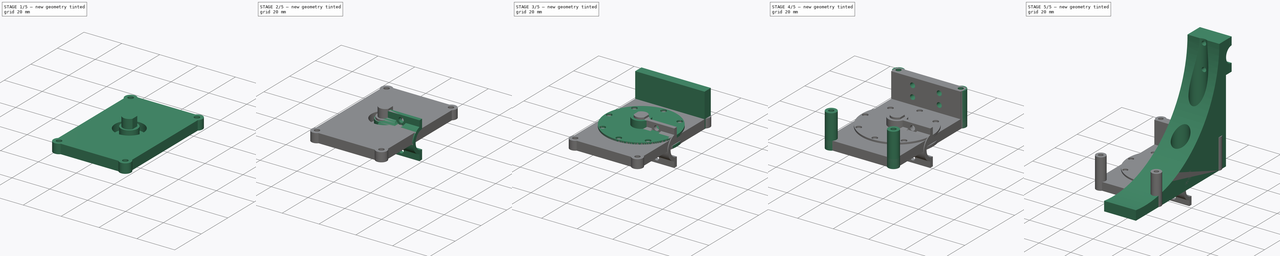
[diagram: build sequence overview — one tinted view per stage of 5, left to right]
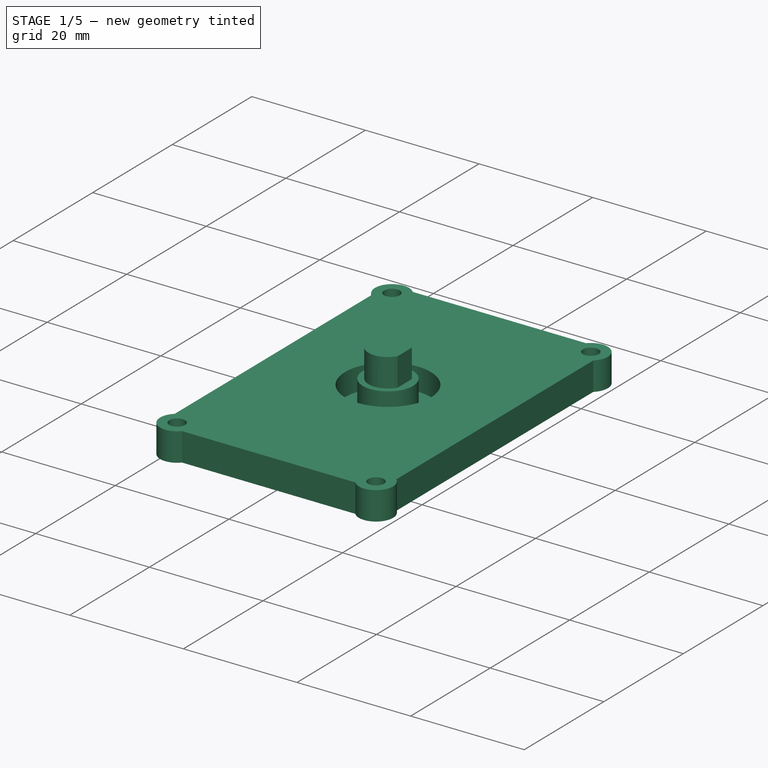
[diagram: stage 1 of 5 — iso view after this stage's code; geometry added in this stage tinted green]
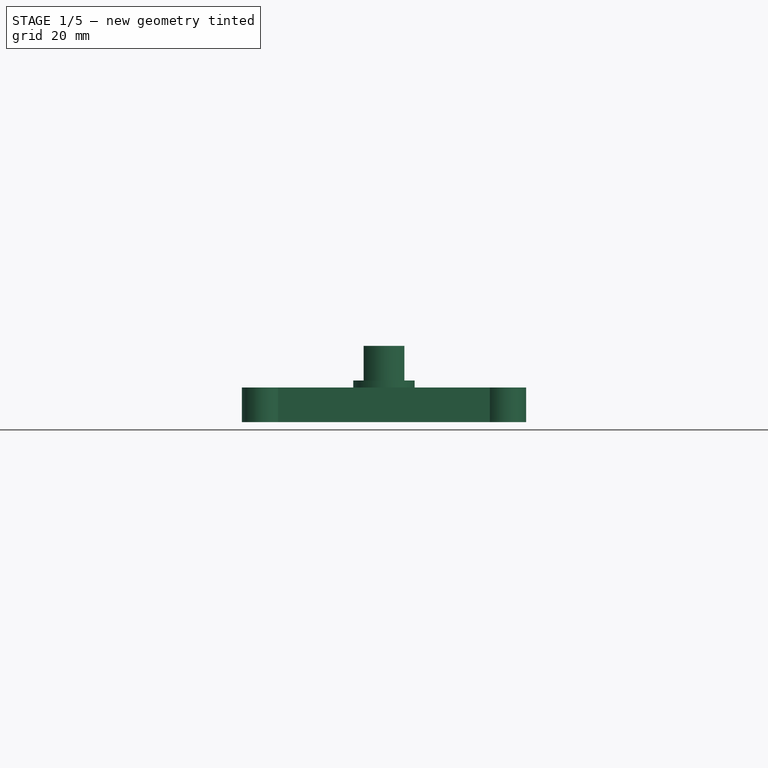
[diagram: stage 1 of 5 — front view after this stage's code; geometry added in this stage tinted green]
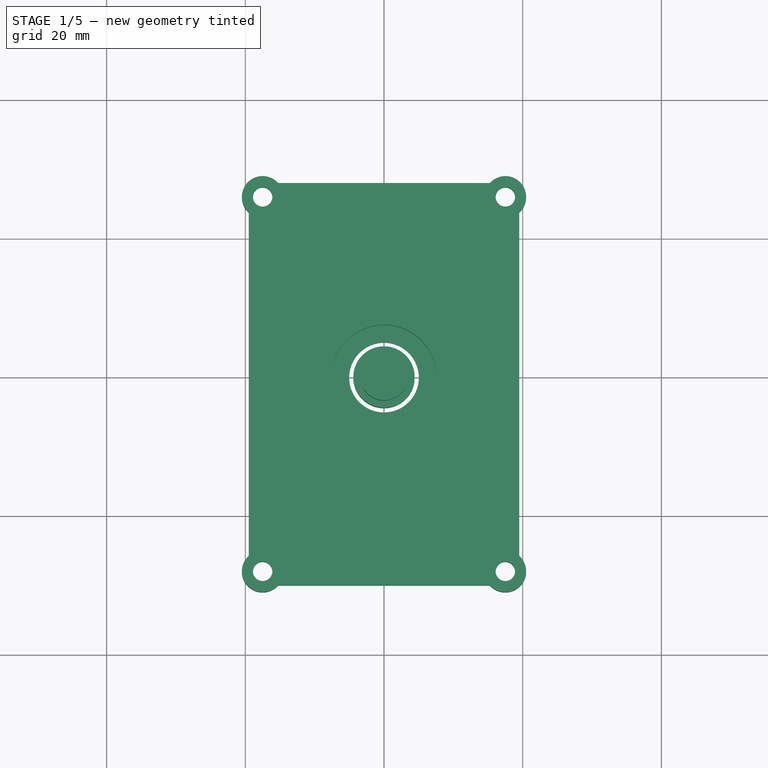
[diagram: stage 1 of 5 — top view after this stage's code; geometry added in this stage tinted green]
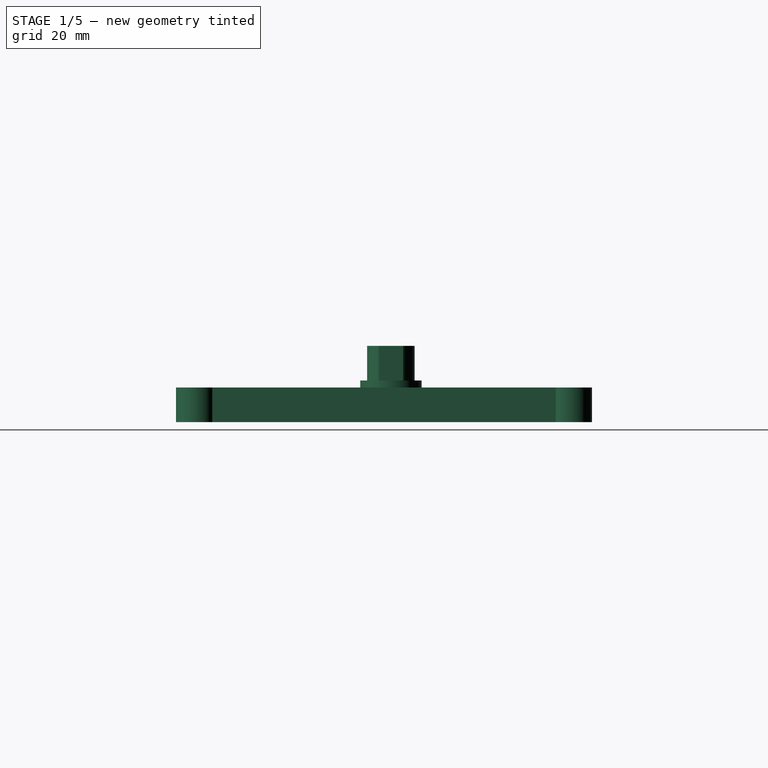
[diagram: stage 1 of 5 — right view after this stage's code; geometry added in this stage tinted green]
FCSTD DOCUMENT  (FreeCAD 0.21R33771 (Git))
Label: blindSupport
License: All rights reserved
LicenseURL: http://en.wikipedia.org/wiki/All_rights_reserved
objects: Sketcher::SketchObject×38, PartDesign::Pad×19, PartDesign::Pocket×15, PartDesign::Body×8, Spreadsheet::Sheet×3, PartDesign::Groove×1, PartDesign::PolarPattern×1
note: 117 computed .brp shape members not serialized (recipe doc carries the construction recipe); baked Part::Feature solids carry a one-line shape summary decoded from their .brp

FEATURE [PartDesign::Body] Body005  label="Body005RodTopCover"
  Group = -> [Sketch035,Pad016,Sketch036,Sketch037,Pocket012,Pocket013]
  Origin = -> Origin005
  Placement = pos=(15,36.1,62) rot=(0,0,1;3.14159rad)
  Tip = -> Pocket013
  expr: .Placement.Base.y = Spreadsheet.parmRodSupportTop
  expr: .Placement.Base.z = Spreadsheet.parmBlindSupportHeight - Spreadsheet.parmRodSupportWidth / 2
FEATURE [Sketcher::SketchObject] Sketch038
  FullyConstrained = true
  MapMode = 5
  Support = -> [XY_Plane005]
  expr: Constraints[1] = Spreadsheet001.motorRBase - 1
  sketch-geometry (1):
    g0: Circle CenterX=0 CenterY=0 CenterZ=0 NormalX=0 NormalY=0 NormalZ=1 AngleXU=0 Radius=4
  constraints (2):
    c: Coincident(g0,g-1)
    c: Radius(g0) = 4
FEATURE [PartDesign::Pad] Pad017  label="Pad013Base001"
  Direction = (0,0,1)
  Length = 5
  Length2 = 10
  Profile = -> Sketch038
  ReferenceAxis = -> Sketch038 [N_Axis]
  Type = 0
  expr: Length = Spreadsheet001.freeWheelBaseHeight
FEATURE [Sketcher::SketchObject] Sketch039
  FullyConstrained = true
  MapMode = 5
  Support = -> [XY_Plane005]
  expr: Constraints[11] = Spreadsheet001.freeWheelConnectorW
  expr: Constraints[1] = Spreadsheet001.freeWheelConnectorR
  sketch-geometry (4):
    g0: ArcOfCircle CenterX=0 CenterY=0 CenterZ=0 NormalX=0 NormalY=0 NormalZ=1 AngleXU=0 Radius=3.425 StartAngle=3.68168 EndAngle=5.7431
    g1: LineSegment StartX=2.9375 StartY=1.76117 StartZ=0 EndX=2.9375 EndY=-1.76117 EndZ=0
    g2: LineSegment StartX=-2.9375 StartY=-1.76117 StartZ=0 EndX=-2.9375 EndY=1.76117 EndZ=0
    g3: ArcOfCircle CenterX=0 CenterY=0 CenterZ=0 NormalX=0 NormalY=0 NormalZ=1 AngleXU=0 Radius=3.425 StartAngle=0.540086 EndAngle=2.60151
  constraints (12):
    c: Coincident(g0,g-1)
    c: Radius(g0) = 3.425
    c: Vertical(g1)
    c: Vertical(g2)
    c: Coincident(g3,g2)
    c: Coincident(g0,g2)
    c: Equal(g0,g3)
    c: Coincident(g0,g1)
    c: Coincident(g3,g1)
    c: Coincident(g0,g3)
    c: Symmetric(g1,g2,g-2)
    c: DistanceX(g2,g1) = 5.875
FEATURE [PartDesign::Pad] Pad018
  BaseFeature = -> Pad017
  Direction = (0,0,1)
  Length = 11
  Length2 = 10
  Profile = -> Sketch039
  ReferenceAxis = -> Sketch039 [N_Axis]
  Type = 0
  expr: Length = Spreadsheet001.freeWheelBaseHeight + Spreadsheet001.wheelSickness
FEATURE [Sketcher::SketchObject] Sketch040
  FullyConstrained = true
  MapMode = 5
  Support = -> [XY_Plane005]
  expr: Constraints[1] = Spreadsheet001.freeWheelConnectorR + 1
  sketch-geometry (1):
    g0: Circle CenterX=0 CenterY=0 CenterZ=0 NormalX=0 NormalY=0 NormalZ=1 AngleXU=0 Radius=4.425
  constraints (2):
    c: Coincident(g0,g-1)
    c: Radius(g0) = 4.425
FEATURE [PartDesign::Pad] Pad019
  BaseFeature = -> Pad018
  Direction = (0,0,1)
  Length = 6
  Length2 = 10
  Profile = -> Sketch040
  ReferenceAxis = -> Sketch040 [N_Axis]
  Type = 0
  expr: Length = Spreadsheet001.freeWheelBaseHeight + 1
FEATURE [PartDesign::Body] Body006  label="Body004EngineWheelConnector001"
  Group = -> [Sketch038,Pad017,Sketch039,Pad018,Sketch040,Pad019,Sketch041,Pocket014]
  Origin = -> Origin006
  Placement = pos=(7.5,59,18) rot=(0,1,0;3.14159rad)
  Tip = -> Pocket014
  expr: .Placement.Base.x = Spreadsheet.parmWallScrewPlateWidth / 2
  expr: .Placement.Base.y = Spreadsheet.parmRodSupportBaseY + Spreadsheet001.motorCenterToBottom
FEATURE [Sketcher::SketchObject] Sketch042  label="Sketch010FrontPlate002"
  FullyConstrained = true
  MapMode = 5
  Support = -> [XY_Plane006]
  expr: Constraints[10] = Spreadsheet001.bearingRodR
  expr: Constraints[14] = Spreadsheet002.toSideWidth
  expr: Constraints[1] = Spreadsheet002.screwBetween
  expr: Constraints[21] = Spreadsheet002.toSideWidth
  expr: Constraints[23] = Spreadsheet002.whellR
  expr: Constraints[24] = Spreadsheet002.motorCenterToBottom
  expr: Constraints[25] = Spreadsheet002.toSideWidth
  expr: Constraints[35] = Spreadsheet002.toSideWidth
  expr: Constraints[41] = Spreadsheet.parmMotorCenterToScrew
  expr: Constraints[4] = Spreadsheet.parmM3ScrewHoleTightR
  expr: Constraints[8] = Spreadsheet002.screwCenterToMotorCenter
  sketch-geometry (17):
    g0: LineSegment StartX=19.5 StartY=-30 StartZ=0 EndX=19.5 EndY=28 EndZ=0
    g1: LineSegment StartX=-17.5 StartY=-28 StartZ=0 EndX=17.5 EndY=-28 EndZ=0
    g2: Circle CenterX=-17.5 CenterY=-28 CenterZ=0 NormalX=0 NormalY=0 NormalZ=1 AngleXU=0 Radius=1.4
    g3: Circle CenterX=17.5 CenterY=-28 CenterZ=0 NormalX=0 NormalY=0 NormalZ=1 AngleXU=0 Radius=1.4
    g4: LineSegment StartX=0 StartY=-28 StartZ=0 EndX=0 EndY=0 EndZ=0
    g5: Circle CenterX=0 CenterY=0 CenterZ=0 NormalX=0 NormalY=0 NormalZ=1 AngleXU=0 Radius=5.02
    g6: LineSegment StartX=19.5 StartY=28 StartZ=0 EndX=-19.5 EndY=28 EndZ=0
    g7: LineSegment StartX=19.5 StartY=-30 StartZ=0 EndX=-19.5 EndY=-30 EndZ=0
    g8: LineSegment StartX=-19.5 StartY=28 StartZ=0 EndX=-19.5 EndY=-30 EndZ=0
    g9: Circle CenterX=0 CenterY=0 CenterZ=0 NormalX=0 NormalY=0 NormalZ=1 AngleXU=0 Radius=20
    g10: LineSegment StartX=-17.5 StartY=-28 StartZ=0 EndX=17.5 EndY=-28 EndZ=0
    g11: LineSegment StartX=17.5 StartY=-28 StartZ=0 EndX=17.5 EndY=26 EndZ=0
    g12: LineSegment StartX=-17.5 StartY=-28 StartZ=0 EndX=-17.5 EndY=26 EndZ=0
    g13: LineSegment StartX=-17.5 StartY=26 StartZ=0 EndX=17.5 EndY=26 EndZ=0
    g14: Circle CenterX=-17.5 CenterY=26 CenterZ=0 NormalX=0 NormalY=0 NormalZ=1 AngleXU=0 Radius=1.4
    g15: Circle CenterX=17.5 CenterY=26 CenterZ=0 NormalX=0 NormalY=0 NormalZ=1 AngleXU=0 Radius=1.4
    g16: Circle CenterX=0 CenterY=0 CenterZ=0 NormalX=0 NormalY=0 NormalZ=1 AngleXU=0 Radius=8
  constraints (42):
    c: Horizontal(g1)
    c: DistanceX(g1,g1) = 35
    c: Coincident(g2,g1)
    c: Coincident(g3,g1)
    c: Radius(g2) = 1.4
    c: Equal(g2,g3)
    c: Vertical(g4)
    c: Symmetric(g2,g3,g4)
    c: DistanceY(g4,g4) = 28
    c: Coincident(g5,g4)
    c: Radius(g5) = 5.02
    c: Coincident(g6,g0)
    c: Vertical(g0)
    c: Horizontal(g6)
    c: DistanceX(g3,g0) = 2
    c: Coincident(g5,g-1)
    c: Coincident(g7,g0)
    c: Horizontal(g7)
    c: Coincident(g8,g6)
    c: Vertical(g8)
    c: Coincident(g8,g7)
    c: DistanceX(g7,g2) = 2
    c: Coincident(g9,g5)
    c: Radius(g9) = 20
    c: DistanceY(g5,g0) = 28
    c: DistanceY(g0,g3) = 2
    c: Coincident(g10,g2)
    c: Coincident(g10,g3)
    c: Coincident(g11,g3)
    c: Vertical(g11)
    c: Coincident(g12,g2)
    c: Vertical(g12)
    c: Coincident(g13,g12)
    c: Coincident(g13,g11)
    c: Horizontal(g13)
    c: DistanceY(g11,g0) = 2
    c: Coincident(g14,g12)
    c: Coincident(g15,g11)
    c: Equal(g15,g3)
    c: Equal(g3,g14)
    c: Coincident(g16,g5)
    c: Radius(g16) = 8
FEATURE [PartDesign::Pad] Pad020  label="Pad006FrontPlate002"
  Direction = (0,0,1)
  Length = 5
  Length2 = 10
  Profile = -> Sketch042
  ReferenceAxis = -> Sketch042 [N_Axis]
  Type = 0
  expr: Length = Spreadsheet001.backwallThickness
FEATURE [Sketcher::SketchObject] Sketch043  label="Sketch016ScrewSupport002"
  FullyConstrained = true
  MapMode = 5
  Support = -> [XY_Plane006]
  expr: Constraints[10] = Spreadsheet002.screwCentertoMotorCenterTop
  expr: Constraints[18] = Spreadsheet002.m3ScrewHoleOuterR
  expr: Constraints[7] = Spreadsheet002.screwBetween
  expr: Constraints[9] = Spreadsheet002.screwCenterToMotorCenter
  sketch-geometry (8):
    g0: LineSegment StartX=-17.5 StartY=26 StartZ=0 EndX=17.5 EndY=26 EndZ=0
    g1: LineSegment StartX=17.5 StartY=26 StartZ=0 EndX=17.5 EndY=-28 EndZ=0
    g2: LineSegment StartX=17.5 StartY=-28 StartZ=0 EndX=-17.5 EndY=-28 EndZ=0
    g3: LineSegment StartX=-17.5 StartY=-28 StartZ=0 EndX=-17.5 EndY=26 EndZ=0
    g4: Circle CenterX=-17.5 CenterY=26 CenterZ=0 NormalX=0 NormalY=0 NormalZ=1 AngleXU=0 Radius=3
    g5: Circle CenterX=17.5 CenterY=26 CenterZ=0 NormalX=0 NormalY=0 NormalZ=1 AngleXU=0 Radius=3
    g6: Circle CenterX=-17.5 CenterY=-28 CenterZ=0 NormalX=0 NormalY=0 NormalZ=1 AngleXU=0 Radius=3
    g7: Circle CenterX=17.5 CenterY=-28 CenterZ=0 NormalX=0 NormalY=0 NormalZ=1 AngleXU=0 Radius=3
  constraints (19):
    c: Coincident(g0,g1)
    c: Coincident(g1,g2)
    c: Coincident(g2,g3)
    c: Coincident(g3,g0)
    c: Horizontal(g0)
    c: Vertical(g1)
    c: Vertical(g3)
    c: DistanceX(g2,g2) = 35
    c: Symmetric(g1,g2,g-2)
    c: DistanceY(g1,g-1) = 28
    c: DistanceY(g-1,g0) = 26
    c: Coincident(g4,g0)
    c: Coincident(g5,g0)
    c: Coincident(g6,g2)
    c: Coincident(g7,g1)
    c: Equal(g5,g4)
    c: Equal(g6,g7)
    c: Equal(g7,g5)
    c: Radius(g5) = 3
FEATURE [PartDesign::Pad] Pad021  label="Pad011CornerSupport001"
  BaseFeature = -> Pad020
  Direction = (0,0,1)
  Length = 5
  Length2 = 10
  Profile = -> Sketch043
  ReferenceAxis = -> Sketch043 [N_Axis]
  Type = 0
  expr: Length = Spreadsheet001.backwallThickness
FEATURE [Sketcher::SketchObject] Sketch044  label="Sketch016ScrewSupport001Hole002"
  FullyConstrained = true
  MapMode = 5
  Support = -> [XY_Plane006]
  expr: Constraints[10] = Spreadsheet002.screwCentertoMotorCenterTop
  expr: Constraints[18] = Spreadsheet.parmM3ScrewHoleTightR
  expr: Constraints[7] = Spreadsheet002.screwBetween
  expr: Constraints[9] = Spreadsheet002.screwCenterToMotorCenter
  sketch-geometry (8):
    g0: LineSegment StartX=-17.5 StartY=26 StartZ=0 EndX=17.5 EndY=26 EndZ=0
    g1: LineSegment StartX=17.5 StartY=26 StartZ=0 EndX=17.5 EndY=-28 EndZ=0
    g2: LineSegment StartX=17.5 StartY=-28 StartZ=0 EndX=-17.5 EndY=-28 EndZ=0
    g3: LineSegment StartX=-17.5 StartY=-28 StartZ=0 EndX=-17.5 EndY=26 EndZ=0
    g4: Circle CenterX=-17.5 CenterY=26 CenterZ=0 NormalX=0 NormalY=0 NormalZ=1 AngleXU=0 Radius=1.4
    g5: Circle CenterX=17.5 CenterY=26 CenterZ=0 NormalX=0 NormalY=0 NormalZ=1 AngleXU=0 Radius=1.4
    g6: Circle CenterX=-17.5 CenterY=-28 CenterZ=0 NormalX=0 NormalY=0 NormalZ=1 AngleXU=0 Radius=1.4
    g7: Circle CenterX=17.5 CenterY=-28 CenterZ=0 NormalX=0 NormalY=0 NormalZ=1 AngleXU=0 Radius=1.4
  constraints (19):
    c: Coincident(g0,g1)
    c: Coincident(g1,g2)
    c: Coincident(g2,g3)
    c: Coincident(g3,g0)
    c: Horizontal(g0)
    c: Vertical(g1)
    c: Vertical(g3)
    c: DistanceX(g2,g2) = 35
    c: Symmetric(g1,g2,g-2)
    c: DistanceY(g1,g-1) = 28
    c: DistanceY(g-1,g0) = 26
    c: Coincident(g4,g0)
    c: Coincident(g5,g0)
    c: Coincident(g6,g2)
    c: Coincident(g7,g1)
    c: Equal(g5,g4)
    c: Equal(g6,g7)
    c: Equal(g7,g5)
    c: Radius(g5) = 1.4
FEATURE [PartDesign::Pocket] Pocket015  label="Pocket005ScrewHoles002"
  BaseFeature = -> Pad021
  Direction = (0,0,-1)
  Length = 5
  Length2 = 5
  Profile = -> Sketch044
  ReferenceAxis = -> Sketch044 [N_Axis]
  Reversed = true
  Type = 1
FEATURE [Spreadsheet::Sheet] Spreadsheet002
  cells = A2='screwBetween; B2(screwBetween)=35; A3='screwCenterToMotorCenter; B3(screwCenterToMotorCenter)==motorCenterToTop; D3='screwCentertoMotorCenterTop; E3(screwCentertoMotorCenterTop)==motorCenterToBottom - wallThickness; A4='motorRBase; B4(motorRBase)=5; A6='motorRodR; B6(motorRodR)==5.1 / 2; A7='morotRodW; B7(morotRodW)=3; A9='wallThickness; B9(wallThickness)=2; A10='baseThickness; B10(baseThickness)=3; A11='toSideWidth; B11(toSideWidth)=2; A12='motorCenterToTop; B12(motorCenterToTop)==Spreadsheet.maxRollerR + motorWheelSidePad; D12='motorCenterToTop should equal to screwnCenterToMotorCenter; A14='whellR; B14(whellR)=20; D14='should be less than maxRollerR; A15='wheelSickness; B15(wheelSickness)==engineHousingClearing - 3; A18='bearingRodR; B18(bearingRodR)=5.02; D18='was 5.03, a bit tight; A20='engineHousingClearing; B20(engineHousingClearing)=9; A21='engineHousingTotal; B21(engineHousingTotal)==engineHousingClearing + backwallThickness + Spreadsheet.parmConnctionScrewBetweenDistY - 1; A23='motorCenterToBottom; B23(motorCenterToBottom)==Spreadsheet.maxRollerR + motorWheelSidePad; D23='motorWheelSidePad; E23(motorWheelSidePad)=3; A24='frontPlateSickness; B24(frontPlateSickness)=3; A25='motoCenterToTop; B25(motoCenterToTop)==screwCenterToMotorCenter + wallThickness; A26='housigThickness; B26(housigThickness)=10; A27='backwallThickness; B27(backwallThickness)=5; A29='bearingDepth; B29(bearingDepth)=4; A30='bearingR; B30(bearingR)=7.56; A31='bearingHolderRingDepth; B31(bearingHolderRingDepth)=1; A32='backwallLength; B32(backwallLength)==screwBetween + wallThickness * 2; A34='m3ScrewHoleOuterR; B34(m3ScrewHoleOuterR)=3; A36='wheelGroveR; B36(wheelGroveR)=1.5; A39='freeWheelBaseHeight; B39(freeWheelBaseHeight)==bearingDepth + 1; A41='connectorDiff; B41(connectorDiff)==1 / 8; A42='freeWheelConnectorR; B42(freeWheelConnectorR)==motorRodR - connectorDiff; A43='freeWheelConnectorW; B43(freeWheelConnectorW)==morotRodW - connectorDiff; A46='DCMorotRodR; B46(DCMorotRodR)=1
FEATURE [Sketcher::SketchObject] Sketch045  label="Sketch045PodBearingHole"
  AttachmentOffset = pos=(0,0,1) rot=(0,0,1;0rad)
  FullyConstrained = false
  MapMode = 5
  Placement = pos=(0,0,1) rot=(0,0,1;0rad)
  Support = -> [XY_Plane006]
  expr: .AttachmentOffset.Base.z = Spreadsheet001.bearingHolderRingDepth
  expr: Constraints[0] = Spreadsheet001.bearingR
  sketch-geometry (1):
    g0: Circle CenterX=0 CenterY=0 CenterZ=0 NormalX=0 NormalY=0 NormalZ=1 AngleXU=0 Radius=7.56
  constraints (1):
    c: Radius(g0) = 7.56
FEATURE [PartDesign::Pocket] Pocket016
  BaseFeature = -> Pocket015
  Direction = (0,0,-1)
  Length = 5
  Length2 = 5
  Profile = -> Sketch045
  ReferenceAxis = -> Sketch045 [N_Axis]
  Reversed = true
  Type = 0
FEATURE [PartDesign::Body] Body007  label="EngineMount001Cover001NoEngine"
  Group = -> [Sketch042,Pad020,Sketch043,Pad021,Sketch044,Pocket015,Sketch045,Pocket016]
  Origin = -> Origin007
  Placement = pos=(10,59,19) rot=(1,0,0;3.14159rad)
  Tip = -> Pocket016
  expr: .Placement.Base.x = Spreadsheet.parmWallScrewPlateWidth / 2
  expr: .Placement.Base.y = Spreadsheet.parmRodSupportBaseY + Spreadsheet002.motorCenterToBottom
  expr: .Placement.Base.z = Spreadsheet002.engineHousingTotal
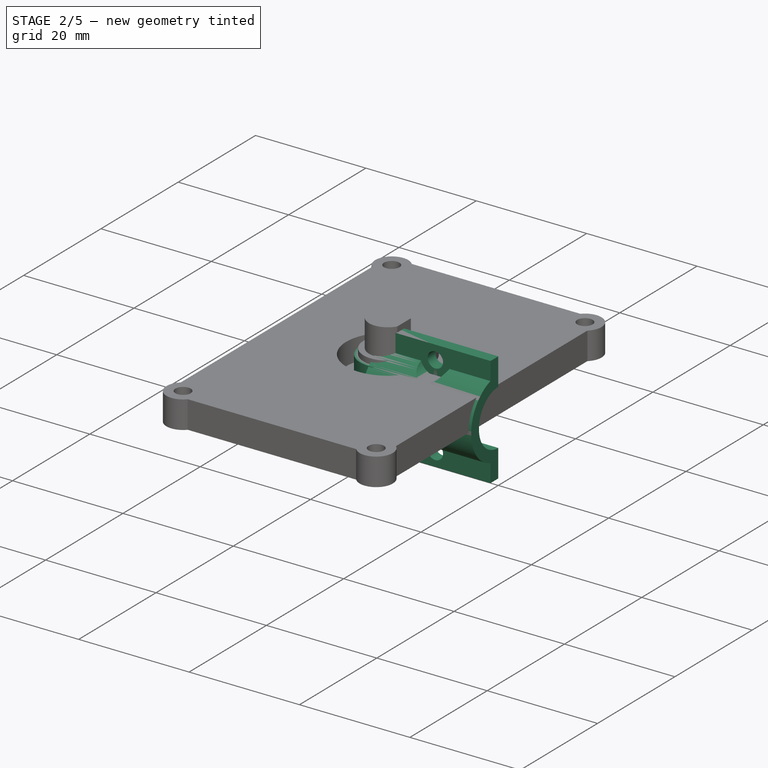
[diagram: stage 2 of 5 — iso view after this stage's code; geometry added in this stage tinted green]
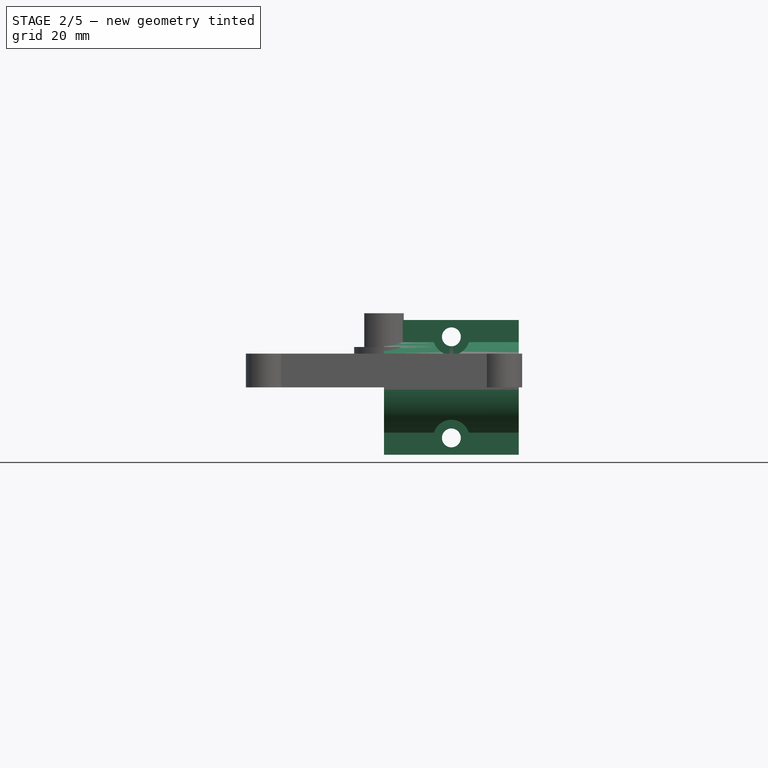
[diagram: stage 2 of 5 — front view after this stage's code; geometry added in this stage tinted green]
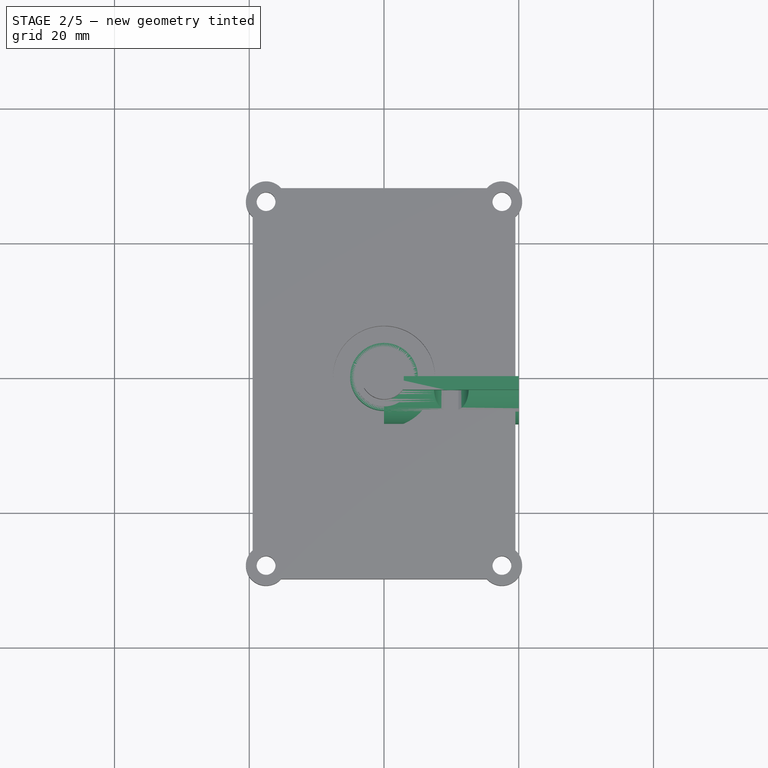
[diagram: stage 2 of 5 — top view after this stage's code; geometry added in this stage tinted green]
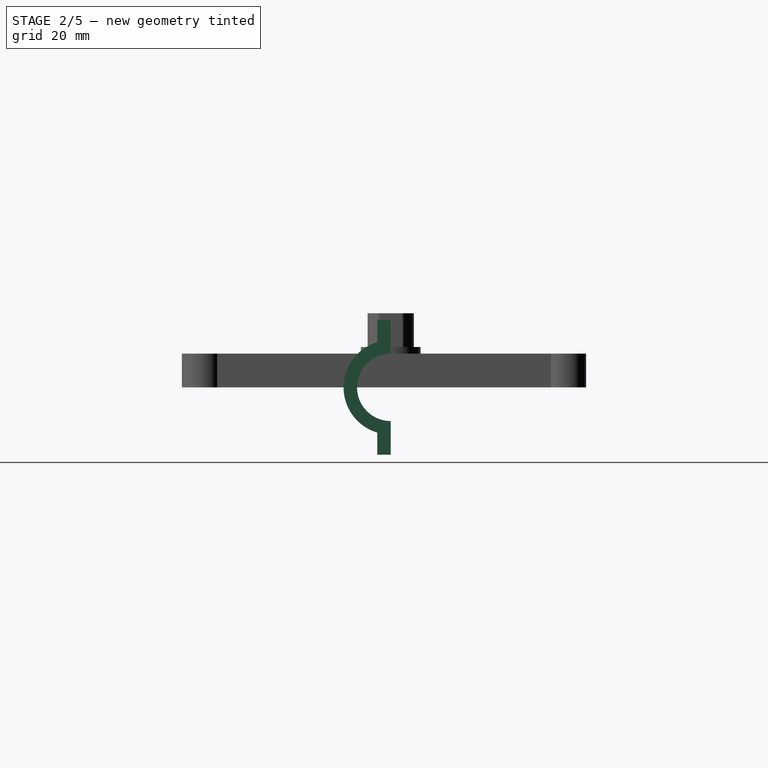
[diagram: stage 2 of 5 — right view after this stage's code; geometry added in this stage tinted green]
FEATURE [PartDesign::Body] Body002  label="Body002Wheel"
  Group = -> [Sketch011,Pad,Sketch012,Groove,Sketch013,Sketch014,Pad012,Pocket008,Sketch031,Pocket011,PolarPattern]
  Origin = -> Origin002
  Placement = pos=(7.5,59,12) rot=(1,0,0;3.14159rad)
  Tip = -> PolarPattern
  expr: .Placement.Base.x = Spreadsheet.parmWallScrewPlateWidth / 2
  expr: .Placement.Base.y = Spreadsheet.parmRodSupportBaseY + Spreadsheet001.motorCenterToBottom
FEATURE [Sketcher::SketchObject] Sketch032
  FullyConstrained = true
  MapMode = 5
  Support = -> [XY_Plane003]
  expr: Constraints[1] = Spreadsheet001.bearingRodR
  sketch-geometry (1):
    g0: Circle CenterX=0 CenterY=0 CenterZ=0 NormalX=0 NormalY=0 NormalZ=1 AngleXU=0 Radius=5.02
  constraints (2):
    c: Coincident(g0,g-1)
    c: Radius(g0) = 5.02
FEATURE [PartDesign::Pad] Pad013  label="Pad013Base"
  Direction = (0,0,1)
  Length = 5
  Length2 = 10
  Profile = -> Sketch032
  ReferenceAxis = -> Sketch032 [N_Axis]
  Type = 0
  expr: Length = Spreadsheet001.freeWheelBaseHeight
FEATURE [Sketcher::SketchObject] Sketch033
  FullyConstrained = true
  MapMode = 5
  Support = -> [XY_Plane003]
  expr: Constraints[11] = Spreadsheet001.freeWheelConnectorW
  expr: Constraints[1] = Spreadsheet001.freeWheelConnectorR
  sketch-geometry (4):
    g0: ArcOfCircle CenterX=0 CenterY=0 CenterZ=0 NormalX=0 NormalY=0 NormalZ=1 AngleXU=0 Radius=3.425 StartAngle=3.68168 EndAngle=5.7431
    g1: LineSegment StartX=2.9375 StartY=1.76117 StartZ=0 EndX=2.9375 EndY=-1.76117 EndZ=0
    g2: LineSegment StartX=-2.9375 StartY=-1.76117 StartZ=0 EndX=-2.9375 EndY=1.76117 EndZ=0
    g3: ArcOfCircle CenterX=0 CenterY=0 CenterZ=0 NormalX=0 NormalY=0 NormalZ=1 AngleXU=0 Radius=3.425 StartAngle=0.540086 EndAngle=2.60151
  constraints (12):
    c: Coincident(g0,g-1)
    c: Radius(g0) = 3.425
    c: Vertical(g1)
    c: Vertical(g2)
    c: Coincident(g3,g2)
    c: Coincident(g0,g2)
    c: Equal(g0,g3)
    c: Coincident(g0,g1)
    c: Coincident(g3,g1)
    c: Coincident(g0,g3)
    c: Symmetric(g1,g2,g-2)
    c: DistanceX(g2,g1) = 5.875
FEATURE [PartDesign::Pad] Pad014
  BaseFeature = -> Pad013
  Direction = (0,0,1)
  Length = 11
  Length2 = 10
  Profile = -> Sketch033
  ReferenceAxis = -> Sketch033 [N_Axis]
  Type = 0
  expr: Length = Spreadsheet001.freeWheelBaseHeight + Spreadsheet001.wheelSickness
FEATURE [Sketcher::SketchObject] Sketch034
  FullyConstrained = true
  MapMode = 5
  Support = -> [XY_Plane003]
  expr: Constraints[1] = Spreadsheet001.freeWheelConnectorR + 1
  sketch-geometry (1):
    g0: Circle CenterX=0 CenterY=0 CenterZ=0 NormalX=0 NormalY=0 NormalZ=1 AngleXU=0 Radius=4.425
  constraints (2):
    c: Coincident(g0,g-1)
    c: Radius(g0) = 4.425
FEATURE [PartDesign::Pad] Pad015
  BaseFeature = -> Pad014
  Direction = (0,0,1)
  Length = 6
  Length2 = 10
  Profile = -> Sketch034
  ReferenceAxis = -> Sketch034 [N_Axis]
  Type = 0
  expr: Length = Spreadsheet001.freeWheelBaseHeight + 1
FEATURE [PartDesign::Body] Body004  label="Body004FreeWheelConnector"
  Group = -> [Sketch032,Pad013,Sketch033,Pad014,Sketch034,Pad015]
  Origin = -> Origin004
  Placement = pos=(7.5,59,18) rot=(0,1,0;3.14159rad)
  Tip = -> Pad015
  expr: .Placement.Base.x = Spreadsheet.parmWallScrewPlateWidth / 2
  expr: .Placement.Base.y = Spreadsheet.parmRodSupportBaseY + Spreadsheet001.motorCenterToBottom
FEATURE [Sketcher::SketchObject] Sketch035
  FullyConstrained = true
  MapMode = 5
  Placement = pos=(0,0,0) rot=(0.57735,0.57735,0.57735;2.0944rad)
  Support = -> [YZ_Plane005]
  expr: Constraints[12] = Spreadsheet.parmRodR
  expr: Constraints[14] = Spreadsheet.parmRodSupportWidth
  expr: Constraints[20] = Spreadsheet.parmRodR + 2
  expr: Constraints[22] = Spreadsheet001.wallThickness
  sketch-geometry (8):
    g0: LineSegment StartX=-2 StartY=10 StartZ=0 EndX=4e-16 EndY=10 EndZ=0
    g1: LineSegment StartX=4e-16 StartY=10 StartZ=0 EndX=4e-16 EndY=5 EndZ=0
    g2: LineSegment StartX=-9e-16 StartY=-10 StartZ=0 EndX=-2 EndY=-10 EndZ=0
    g3: LineSegment StartX=-2 StartY=-10 StartZ=0 EndX=-2 EndY=-6.7082 EndZ=0
    g4: ArcOfCircle CenterX=0 CenterY=0 CenterZ=0 NormalX=0 NormalY=0 NormalZ=1 AngleXU=0 Radius=5 StartAngle=1.5708 EndAngle=4.71239
    g5: LineSegment StartX=-9e-16 StartY=-5 StartZ=0 EndX=-9e-16 EndY=-10 EndZ=0
    g6: ArcOfCircle CenterX=0 CenterY=0 CenterZ=0 NormalX=0 NormalY=0 NormalZ=1 AngleXU=0 Radius=7 StartAngle=1.86055 EndAngle=4.42264
    g7: LineSegment StartX=-2 StartY=6.7082 StartZ=0 EndX=-2 EndY=10 EndZ=0
  constraints (23):
    c: Coincident(g0,g1)
    c: Coincident(g5,g2)
    c: Coincident(g2,g3)
    c: Coincident(g7,g0)
    c: Horizontal(g0)
    c: Horizontal(g2)
    c: Vertical(g1)
    c: Vertical(g3)
    c: PointOnObject(g4,g1)
    c: Coincident(g1,g4)
    c: Coincident(g5,g4)
    c: Symmetric(g0,g2,g4)
    c: Radius(g4) = 5
    c: Vertical(g5)
    c: DistanceY(g3,g7) = 20
    c: Coincident(g6,g4)
    c: Coincident(g4,g-1)
    c: PointOnObject(g6,g3)
    c: Coincident(g3,g6)
    c: Vertical(g7)
    c: Radius(g6) = 7
    c: Coincident(g7,g6)
    c: DistanceX(g0,g0) = 2
FEATURE [PartDesign::Pad] Pad016
  Direction = (1,-2e-16,3e-16)
  Length = 20
  Length2 = 10
  Placement = pos=(0,0,0) rot=(0.57735,0.57735,0.57735;2.0944rad)
  Profile = -> Sketch035
  ReferenceAxis = -> Sketch035 [N_Axis]
  Type = 0
  expr: Length = Spreadsheet.parmWallScrewPlateWidth
FEATURE [Sketcher::SketchObject] Sketch036
  FullyConstrained = true
  MapMode = 5
  Placement = pos=(0,0,0) rot=(1,0,0;1.5708rad)
  Support = -> [XZ_Plane005]
  expr: Constraints[0] = Spreadsheet.parmRodSupportWidth - Spreadsheet.parmM3ScrewHolePlatformMinWidth
  expr: Constraints[2] = Spreadsheet.parmWallScrewPlateWidth / 2
  expr: Constraints[5] = Spreadsheet.parmM3ScrewHoleTightR
  sketch-geometry (3):
    g0: LineSegment StartX=10 StartY=7.5 StartZ=0 EndX=10 EndY=-7.5 EndZ=0
    g1: Circle CenterX=10 CenterY=7.5 CenterZ=0 NormalX=0 NormalY=0 NormalZ=1 AngleXU=0 Radius=1.4
    g2: Circle CenterX=10 CenterY=-7.5 CenterZ=0 NormalX=0 NormalY=0 NormalZ=1 AngleXU=0 Radius=1.4
  constraints (7):
    c: DistanceY(g0,g0) = 15
    c: Symmetric(g0,g0,g-1)
    c: DistanceX(g-1,g0) = 10
    c: Coincident(g1,g0)
    c: Coincident(g2,g0)
    c: Radius(g1) = 1.4
    c: Equal(g1,g2)
FEATURE [Sketcher::SketchObject] Sketch037
  AttachmentOffset = pos=(0,0,2) rot=(0,0,1;0rad)
  FullyConstrained = true
  MapMode = 5
  Placement = pos=(0,-2,-4e-16) rot=(1,0,0;1.5708rad)
  Support = -> [XZ_Plane005]
  expr: .AttachmentOffset.Base.z = Spreadsheet001.wallThickness
  expr: Constraints[0] = Spreadsheet.parmRodSupportWidth - Spreadsheet.parmM3ScrewHolePlatformMinWidth
  expr: Constraints[2] = Spreadsheet.parmWallScrewPlateWidth / 2
  expr: Constraints[5] = Spreadsheet.parmM3CapClearence
  sketch-geometry (3):
    g0: LineSegment StartX=10 StartY=7.5 StartZ=0 EndX=10 EndY=-7.5 EndZ=0
    g1: Circle CenterX=10 CenterY=7.5 CenterZ=0 NormalX=0 NormalY=0 NormalZ=1 AngleXU=0 Radius=2.7
    g2: Circle CenterX=10 CenterY=-7.5 CenterZ=0 NormalX=0 NormalY=0 NormalZ=1 AngleXU=0 Radius=2.7
  constraints (7):
    c: DistanceY(g0,g0) = 15
    c: Symmetric(g0,g0,g-1)
    c: DistanceX(g-1,g0) = 10
    c: Coincident(g1,g0)
    c: Coincident(g2,g0)
    c: Radius(g1) = 2.7
    c: Equal(g1,g2)
FEATURE [PartDesign::Pocket] Pocket012
  BaseFeature = -> Pad016
  Direction = (0,1,2e-16)
  Length = 5
  Length2 = 5
  Placement = pos=(0,0,0) rot=(0.57735,0.57735,0.57735;2.0944rad)
  Profile = -> Sketch036
  ReferenceAxis = -> Sketch036 [N_Axis]
  Reversed = true
  Type = 1
FEATURE [PartDesign::Pocket] Pocket013
  BaseFeature = -> Pocket012
  Direction = (0,1,2e-16)
  Length = 5
  Length2 = 5
  Placement = pos=(0,0,0) rot=(0.57735,0.57735,0.57735;2.0944rad)
  Profile = -> Sketch037
  ReferenceAxis = -> Sketch037 [N_Axis]
  Reversed = true
  Type = 0
FEATURE [Sketcher::SketchObject] Sketch041  label="Sketch041RodHole"
  FullyConstrained = true
  MapMode = 5
  Support = -> [XY_Plane005]
  expr: Constraints[1] = Spreadsheet001.DCMorotRodR + 0.2
  sketch-geometry (1):
    g0: Circle CenterX=0 CenterY=0 CenterZ=0 NormalX=0 NormalY=0 NormalZ=1 AngleXU=0 Radius=1.2
  constraints (2):
    c: Coincident(g0,g-1)
    c: Radius(g0) = 1.2
FEATURE [PartDesign::Pocket] Pocket014  label="Pocket014RodHole"
  BaseFeature = -> Pad019
  Direction = (0,0,-1)
  Length = 5
  Length2 = 5
  Profile = -> Sketch041
  ReferenceAxis = -> Sketch041 [N_Axis]
  Reversed = true
  Type = 1
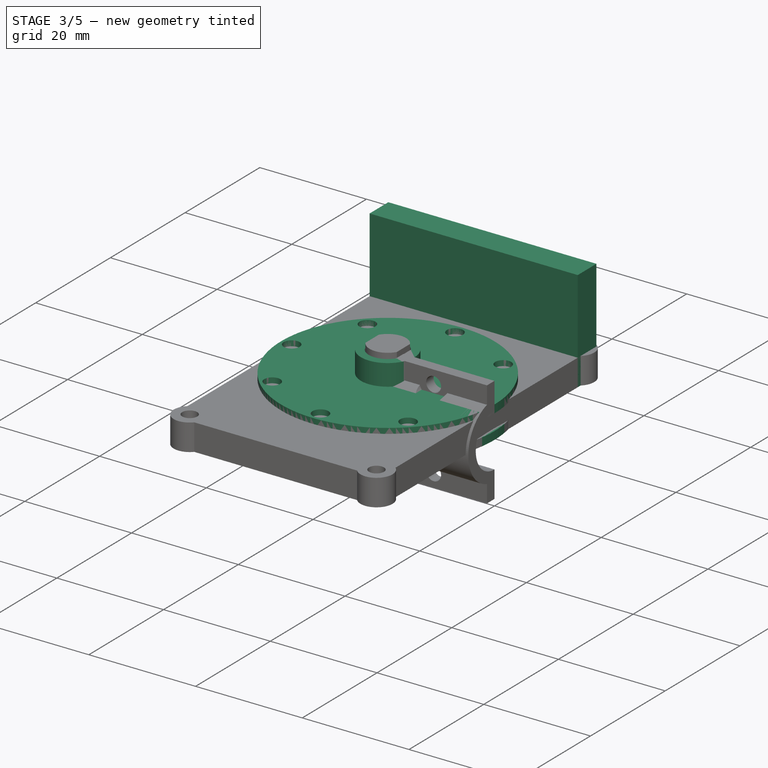
[diagram: stage 3 of 5 — iso view after this stage's code; geometry added in this stage tinted green]
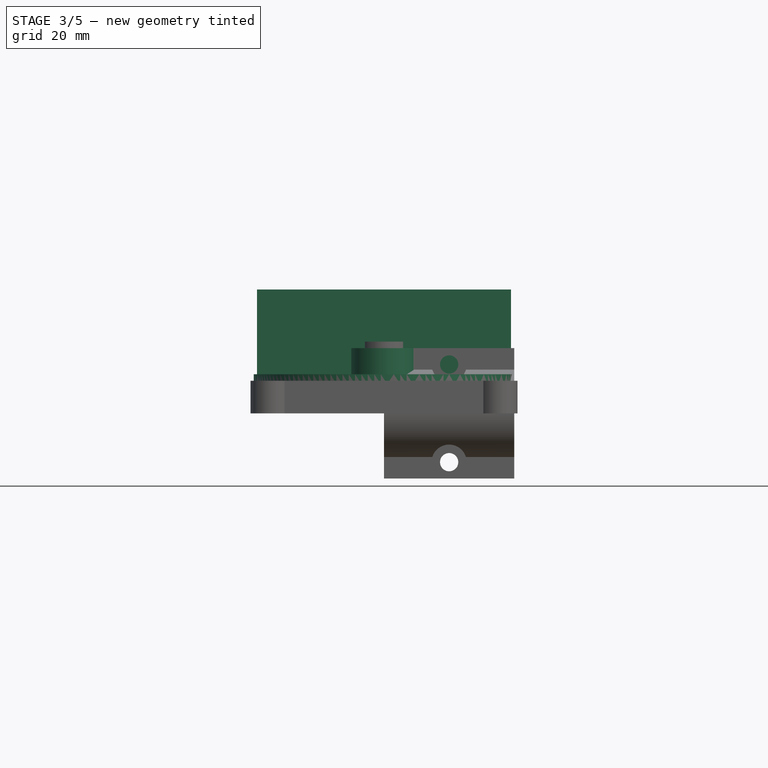
[diagram: stage 3 of 5 — front view after this stage's code; geometry added in this stage tinted green]
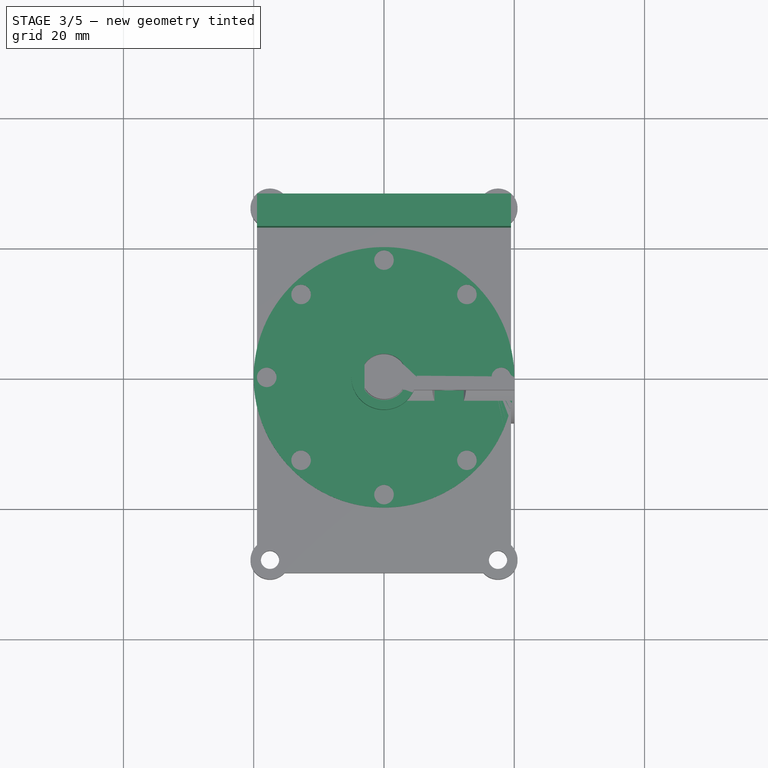
[diagram: stage 3 of 5 — top view after this stage's code; geometry added in this stage tinted green]
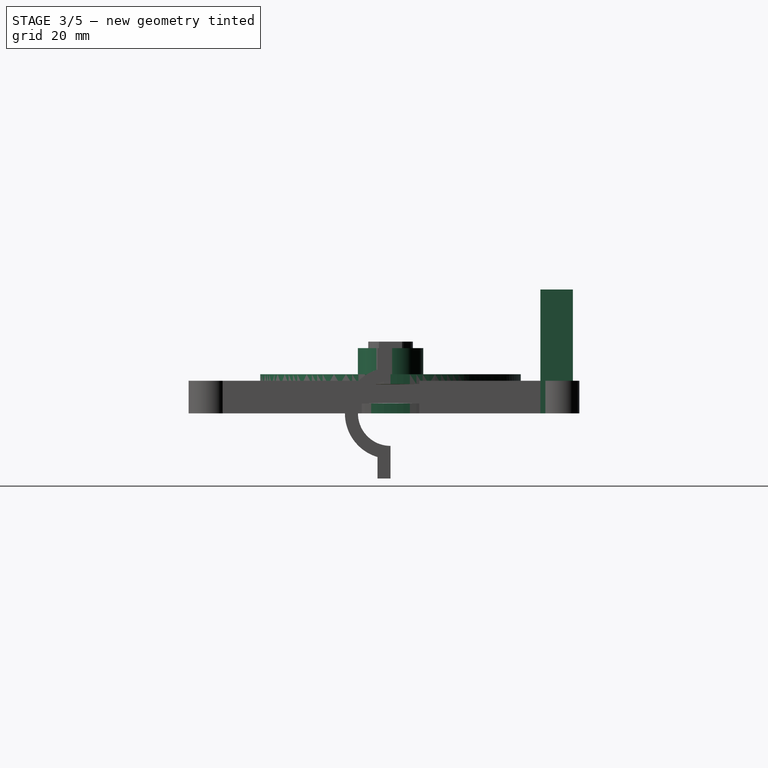
[diagram: stage 3 of 5 — right view after this stage's code; geometry added in this stage tinted green]
FEATURE [Spreadsheet::Sheet] Spreadsheet001
  cells = A2='screwBetween; B2(screwBetween)=35; A3='screwCenterToMotorCenter; B3(screwCenterToMotorCenter)==motorCenterToTop; D3='screwCentertoMotorCenterTop; E3(screwCentertoMotorCenterTop)==motorCenterToBottom - wallThickness; A4='motorRBase; B4(motorRBase)=5; A6='motorRodR; B6(motorRodR)==5.1 / 2 + 1; D6='was 2.55 chane to 3.55; A7='morotRodW; B7(morotRodW)=6; D7='was 3 for stepper motor (round squire). change to 6; A9='wallThickness; B9(wallThickness)=2; A10='baseThickness; B10(baseThickness)=3; A11='toSideWidth; B11(toSideWidth)=2; A12='motorCenterToTop; B12(motorCenterToTop)==Spreadsheet.maxRollerR + motorWheelSidePad; D12='motorCenterToTop should equal to screwnCenterToMotorCenter; A14='whellR; B14(whellR)=20; D14='should be less than maxRollerR; A15='wheelSickness; B15(wheelSickness)==engineHousingClearing - 3; A18='bearingRodR; B18(bearingRodR)=5.02; D18='was 5.03, a bit tight; A20='engineHousingClearing; B20(engineHousingClearing)=9; A21='engineHousingTotal; B21(engineHousingTotal)==engineHousingClearing + backwallThickness + Spreadsheet.parmConnctionScrewBetweenDistY - 1; A23='motorCenterToBottom; B23(motorCenterToBottom)==Spreadsheet.maxRollerR + motorWheelSidePad; D23='motorWheelSidePad; E23(motorWheelSidePad)=3; A24='frontPlateSickness; B24(frontPlateSickness)=3; A25='motoCenterToTop; B25(motoCenterToTop)==screwCenterToMotorCenter + wallThickness; A26='housigThickness; B26(housigThickness)=10; A27='backwallThickness; B27(backwallThickness)=5; A29='bearingDepth; B29(bearingDepth)=4; A30='bearingR; B30(bearingR)=7.56; A31='bearingHolderRingDepth; B31(bearingHolderRingDepth)=1; A32='backwallLength; B32(backwallLength)==screwBetween + wallThickness * 2; A34='m3ScrewHoleOuterR; B34(m3ScrewHoleOuterR)=3; A36='wheelGroveR; B36(wheelGroveR)=1.5; A39='freeWheelBaseHeight; B39(freeWheelBaseHeight)==bearingDepth + 1; A41='connectorDiff; B41(connectorDiff)==1 / 8; A42='freeWheelConnectorR; B42(freeWheelConnectorR)==motorRodR - connectorDiff; A43='freeWheelConnectorW; B43(freeWheelConnectorW)==morotRodW - connectorDiff; A46='DCMorotRodR; B46(DCMorotRodR)=1
FEATURE [Sketcher::SketchObject] Sketch010  label="Sketch010FrontPlate"
  FullyConstrained = true
  MapMode = 5
  Support = -> [XY_Plane001]
  expr: Constraints[10] = Spreadsheet001.motorRBase
  expr: Constraints[14] = Spreadsheet001.toSideWidth
  expr: Constraints[1] = Spreadsheet001.screwBetween
  expr: Constraints[21] = Spreadsheet001.toSideWidth
  expr: Constraints[23] = Spreadsheet001.bearingRodR
  expr: Constraints[24] = Spreadsheet001.motorCenterToBottom
  expr: Constraints[25] = Spreadsheet001.toSideWidth
  expr: Constraints[35] = Spreadsheet001.toSideWidth
  expr: Constraints[41] = Spreadsheet.maxRollerR
  expr: Constraints[4] = Spreadsheet.parmM3ScrewHoleTightR
  expr: Constraints[8] = Spreadsheet001.screwCenterToMotorCenter
  sketch-geometry (17):
    g0: LineSegment StartX=19.5 StartY=-30 StartZ=0 EndX=19.5 EndY=28 EndZ=0
    g1: LineSegment StartX=-17.5 StartY=-28 StartZ=0 EndX=17.5 EndY=-28 EndZ=0
    g2: Circle CenterX=-17.5 CenterY=-28 CenterZ=0 NormalX=0 NormalY=0 NormalZ=1 AngleXU=0 Radius=1.4
    g3: Circle CenterX=17.5 CenterY=-28 CenterZ=0 NormalX=0 NormalY=0 NormalZ=1 AngleXU=0 Radius=1.4
    g4: LineSegment StartX=0 StartY=-28 StartZ=0 EndX=0 EndY=0 EndZ=0
    g5: Circle CenterX=0 CenterY=0 CenterZ=0 NormalX=0 NormalY=0 NormalZ=1 AngleXU=0 Radius=5
    g6: LineSegment StartX=19.5 StartY=28 StartZ=0 EndX=-19.5 EndY=28 EndZ=0
    g7: LineSegment StartX=19.5 StartY=-30 StartZ=0 EndX=-19.5 EndY=-30 EndZ=0
    g8: LineSegment StartX=-19.5 StartY=28 StartZ=0 EndX=-19.5 EndY=-30 EndZ=0
    g9: Circle CenterX=0 CenterY=0 CenterZ=0 NormalX=0 NormalY=0 NormalZ=1 AngleXU=0 Radius=5.02
    g10: LineSegment StartX=-17.5 StartY=-28 StartZ=0 EndX=17.5 EndY=-28 EndZ=0
    g11: LineSegment StartX=17.5 StartY=-28 StartZ=0 EndX=17.5 EndY=26 EndZ=0
    g12: LineSegment StartX=-17.5 StartY=-28 StartZ=0 EndX=-17.5 EndY=26 EndZ=0
    g13: LineSegment StartX=-17.5 StartY=26 StartZ=0 EndX=17.5 EndY=26 EndZ=0
    g14: Circle CenterX=-17.5 CenterY=26 CenterZ=0 NormalX=0 NormalY=0 NormalZ=1 AngleXU=0 Radius=1.4
    g15: Circle CenterX=17.5 CenterY=26 CenterZ=0 NormalX=0 NormalY=0 NormalZ=1 AngleXU=0 Radius=1.4
    g16: Circle CenterX=0 CenterY=0 CenterZ=0 NormalX=0 NormalY=0 NormalZ=1 AngleXU=0 Radius=25
  constraints (42):
    c: Horizontal(g1)
    c: DistanceX(g1,g1) = 35
    c: Coincident(g2,g1)
    c: Coincident(g3,g1)
    c: Radius(g2) = 1.4
    c: Equal(g2,g3)
    c: Vertical(g4)
    c: Symmetric(g2,g3,g4)
    c: DistanceY(g4,g4) = 28
    c: Coincident(g5,g4)
    c: Radius(g5) = 5
    c: Coincident(g6,g0)
    c: Vertical(g0)
    c: Horizontal(g6)
    c: DistanceX(g3,g0) = 2
    c: Coincident(g5,g-1)
    c: Coincident(g7,g0)
    c: Horizontal(g7)
    c: Coincident(g8,g6)
    c: Vertical(g8)
    c: Coincident(g8,g7)
    c: DistanceX(g7,g2) = 2
    c: Coincident(g9,g5)
    c: Radius(g9) = 5.02
    c: DistanceY(g5,g0) = 28
    c: DistanceY(g0,g3) = 2
    c: Coincident(g10,g2)
    c: Coincident(g10,g3)
    c: Coincident(g11,g3)
    c: Vertical(g11)
    c: Coincident(g12,g2)
    c: Vertical(g12)
    c: Coincident(g13,g12)
    c: Coincident(g13,g11)
    c: Horizontal(g13)
    c: DistanceY(g11,g0) = 2
    c: Coincident(g14,g12)
    c: Coincident(g15,g11)
    c: Equal(g15,g3)
    c: Equal(g3,g14)
    c: Coincident(g16,g5)
    c: Radius(g16) = 25
FEATURE [PartDesign::Pad] Pad006  label="Pad006FrontPlate"
  Direction = (0,0,1)
  Length = 5
  Length2 = 10
  Profile = -> Sketch010
  ReferenceAxis = -> Sketch010 [N_Axis]
  Type = 0
  expr: Length = Spreadsheet001.backwallThickness
FEATURE [PartDesign::Body] Body  label="BodyHangerSupport"
  Group = -> [Sketch,Sketch002,Pad002,Sketch003,Pad003,Sketch005,Sketch006,Pad005,Sketch007,Pocket001,Sketch008,Pocket,Sketch009,Pocket002,Pocket003]
  Origin = -> Origin
  Tip = -> Pocket003
FEATURE [Sketcher::SketchObject] Sketch011
  FullyConstrained = true
  MapMode = 5
  Support = -> [XY_Plane002]
  expr: Constraints[1] = Spreadsheet001.whellR
  sketch-geometry (1):
    g0: Circle CenterX=0 CenterY=0 CenterZ=0 NormalX=0 NormalY=0 NormalZ=1 AngleXU=0 Radius=20
  constraints (2):
    c: Coincident(g0,g-1)
    c: Radius(g0) = 20
FEATURE [PartDesign::Pad] Pad
  Direction = (0,0,1)
  Length = 6
  Length2 = 10
  Profile = -> Sketch011
  ReferenceAxis = -> Sketch011 [N_Axis]
  Type = 0
  expr: Length = Spreadsheet001.wheelSickness
FEATURE [Sketcher::SketchObject] Sketch012
  FullyConstrained = true
  MapMode = 5
  Placement = pos=(0,0,0) rot=(1,0,0;1.5708rad)
  Support = -> [XZ_Plane002]
  expr: Constraints[0] = Spreadsheet001.wheelSickness / 2
  expr: Constraints[1] = Spreadsheet001.wheelGroveR
  expr: Constraints[2] = Spreadsheet001.whellR
  sketch-geometry (2):
    g0: ArcOfCircle CenterX=20 CenterY=3 CenterZ=0 NormalX=0 NormalY=0 NormalZ=1 AngleXU=0 Radius=1.5 StartAngle=1.5708 EndAngle=4.71239
    g1: LineSegment StartX=20 StartY=4.5 StartZ=0 EndX=20 EndY=1.5 EndZ=0
  constraints (7):
    c: DistanceY(g-1,g0) = 3
    c: Radius(g0) = 1.5
    c: DistanceX(g-1,g0) = 20
    c: Vertical(g1)
    c: PointOnObject(g0,g1)
    c: Coincident(g0,g1)
    c: Coincident(g0,g1)
FEATURE [PartDesign::Groove] Groove
  Angle = 360
  Axis = (0,-2e-16,1)
  Base = (0,0,0)
  BaseFeature = -> Pad
  Profile = -> Sketch012
  ReferenceAxis = -> Sketch012 [V_Axis]
FEATURE [Sketcher::SketchObject] Sketch013
  AttachmentOffset = pos=(0,0,6) rot=(0,0,1;0rad)
  FullyConstrained = true
  MapMode = 5
  Placement = pos=(0,0,6) rot=(0,0,1;0rad)
  Support = -> [XY_Plane002]
  expr: .AttachmentOffset.Base.z = Spreadsheet001.wheelSickness
  expr: Constraints[1] = Spreadsheet001.bearingRodR
  sketch-geometry (1):
    g0: Circle CenterX=0 CenterY=0 CenterZ=0 NormalX=0 NormalY=0 NormalZ=1 AngleXU=0 Radius=5.02
  constraints (2):
    c: Coincident(g0,g-1)
    c: Radius(g0) = 5.02
FEATURE [Sketcher::SketchObject] Sketch014
  FullyConstrained = true
  MapMode = 5
  Support = -> [XY_Plane002]
  expr: Constraints[11] = Spreadsheet001.morotRodW
  expr: Constraints[1] = Spreadsheet001.motorRodR
  sketch-geometry (4):
    g0: ArcOfCircle CenterX=0 CenterY=0 CenterZ=0 NormalX=0 NormalY=0 NormalZ=1 AngleXU=0 Radius=3.55 StartAngle=3.70569 EndAngle=5.71909
    g1: LineSegment StartX=3 StartY=1.89803 StartZ=0 EndX=3 EndY=-1.89803 EndZ=0
    g2: LineSegment StartX=-3 StartY=-1.89803 StartZ=0 EndX=-3 EndY=1.89803 EndZ=0
    g3: ArcOfCircle CenterX=0 CenterY=0 CenterZ=0 NormalX=0 NormalY=0 NormalZ=1 AngleXU=0 Radius=3.55 StartAngle=0.564099 EndAngle=2.57749
  constraints (12):
    c: Coincident(g0,g-1)
    c: Radius(g0) = 3.55
    c: Vertical(g1)
    c: Vertical(g2)
    c: Coincident(g3,g2)
    c: Equal(g0,g3)
    c: Coincident(g3,g1)
    c: Coincident(g0,g3)
    c: Coincident(g2,g0)
    c: Coincident(g1,g0)
    c: Symmetric(g2,g1,g-2)
    c: DistanceX(g2,g1) = 6
FEATURE [Sketcher::SketchObject] Sketch015  label="Sketch015SideWall"
  FullyConstrained = true
  MapMode = 5
  Support = -> [XY_Plane001]
  expr: Constraints[6] = -Spreadsheet001.backwallThickness
  expr: Constraints[7] = Spreadsheet001.backwallLength
  expr: Constraints[9] = Spreadsheet001.motorCenterToBottom
  sketch-geometry (4):
    g0: LineSegment StartX=19.5 StartY=23 StartZ=0 EndX=19.5 EndY=28 EndZ=0
    g1: LineSegment StartX=-19.5 StartY=23 StartZ=0 EndX=19.5 EndY=23 EndZ=0
    g2: LineSegment StartX=19.5 StartY=28 StartZ=0 EndX=-19.5 EndY=28 EndZ=0
    g3: LineSegment StartX=-19.5 StartY=28 StartZ=0 EndX=-19.5 EndY=23 EndZ=0
  constraints (11):
    c: Vertical(g0)
    c: Coincident(g2,g3)
    c: Coincident(g3,g1)
    c: Horizontal(g1)
    c: Vertical(g3)
    c: Coincident(g2,g0)
    c: DistanceY(g3,g3) = -5
    c: DistanceX(g2,g2) = 39
    c: Symmetric(g0,g2,g-2)
    c: DistanceY(g-1,g0) = 28
    c: Coincident(g1,g0)
FEATURE [PartDesign::Pad] Pad007  label="Pad007SideWall"
  BaseFeature = -> Pad006
  Direction = (0,0,1)
  Length = 19
  Length2 = 10
  Profile = -> Sketch015
  ReferenceAxis = -> Sketch015 [N_Axis]
  Type = 0
  expr: Length = Spreadsheet001.engineHousingTotal
FEATURE [PartDesign::Pad] Pad012
  BaseFeature = -> Groove
  Direction = (0,0,1)
  Length = 4
  Length2 = 10
  Profile = -> Sketch013
  ReferenceAxis = -> Sketch013 [N_Axis]
  Type = 0
  expr: Length = Spreadsheet001.bearingDepth
FEATURE [PartDesign::Pocket] Pocket008
  BaseFeature = -> Pad012
  Direction = (0,0,-1)
  Length = 5
  Length2 = 5
  Profile = -> Sketch014
  ReferenceAxis = -> Sketch014 [N_Axis]
  Reversed = true
  Type = 1
FEATURE [Sketcher::SketchObject] Sketch030
  FullyConstrained = true
  MapMode = 5
  Support = -> [XY_Plane001]
FEATURE [PartDesign::Body] Body001  label="EngineMount"
  Group = -> [Sketch010,Pad006,Sketch015,Pad007,Sketch016,Sketch017,Pad008,Sketch018,Pocket005,Sketch024,Pocket007,Sketch025,Pocket009,Sketch030]
  Origin = -> Origin001
  Placement = pos=(10,59,0) rot=(0,0,1;3.14159rad)
  Tip = -> Pocket009
  expr: .Placement.Base.x = Spreadsheet.parmWallScrewPlateWidth / 2
  expr: .Placement.Base.y = Spreadsheet.parmRodSupportBaseY + Spreadsheet001.motorCenterToBottom
FEATURE [Sketcher::SketchObject] Sketch031  label="Sketch031GroveTooth"
  FullyConstrained = true
  MapMode = 5
  Support = -> [XY_Plane002]
  expr: Constraints[1] = Spreadsheet001.wheelGroveR
  expr: Constraints[2] = Spreadsheet001.whellR - Spreadsheet001.wheelGroveR - 0.5
  sketch-geometry (1):
    g0: Circle CenterX=18 CenterY=0 CenterZ=0 NormalX=0 NormalY=0 NormalZ=1 AngleXU=0 Radius=1.5
  constraints (3):
    c: PointOnObject(g0,g-1)
    c: Radius(g0) = 1.5
    c: DistanceX(g-1,g0) = 18
FEATURE [PartDesign::Pocket] Pocket011
  BaseFeature = -> Pocket008
  Direction = (0,0,-1)
  Length = 6
  Length2 = 5
  Profile = -> Sketch031
  ReferenceAxis = -> Sketch031 [N_Axis]
  Reversed = true
  Type = 0
  expr: Length = Spreadsheet001.wheelSickness
FEATURE [PartDesign::PolarPattern] PolarPattern
  Angle = 360
  Axis = -> Sketch031 [N_Axis]
  BaseFeature = -> Pocket011
  Occurrences = 8
  Originals = -> [Pocket011]
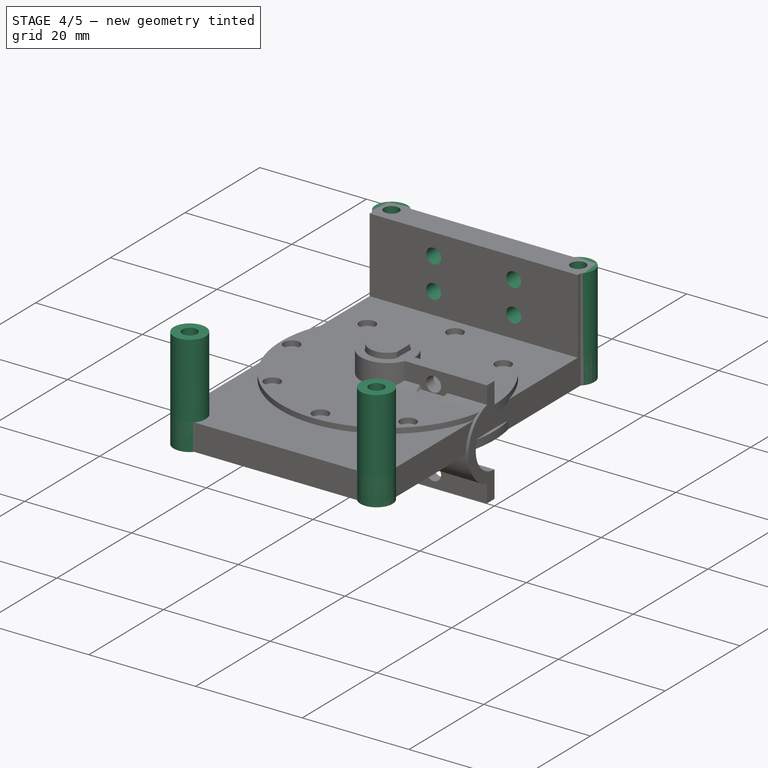
[diagram: stage 4 of 5 — iso view after this stage's code; geometry added in this stage tinted green]
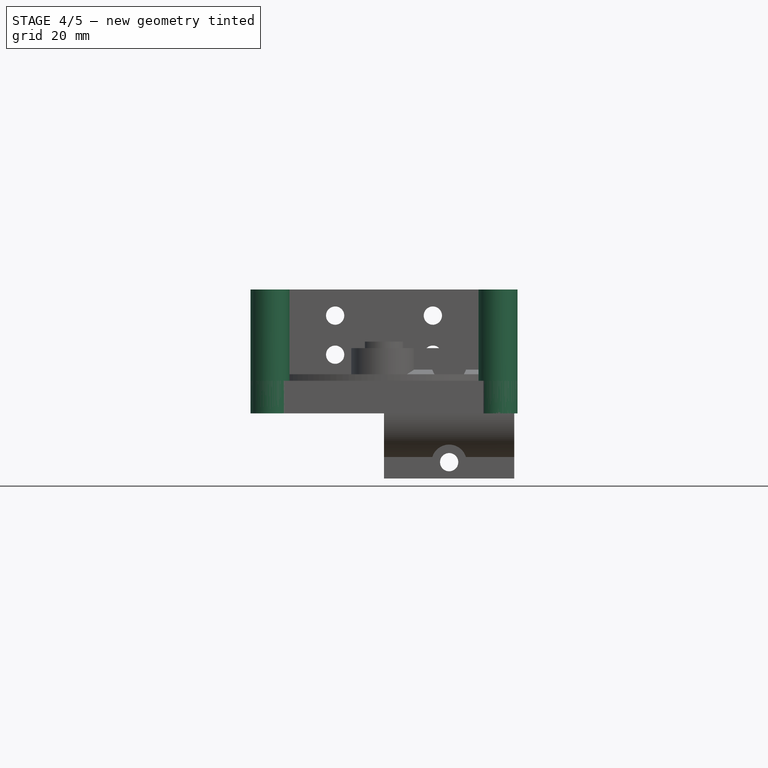
[diagram: stage 4 of 5 — front view after this stage's code; geometry added in this stage tinted green]
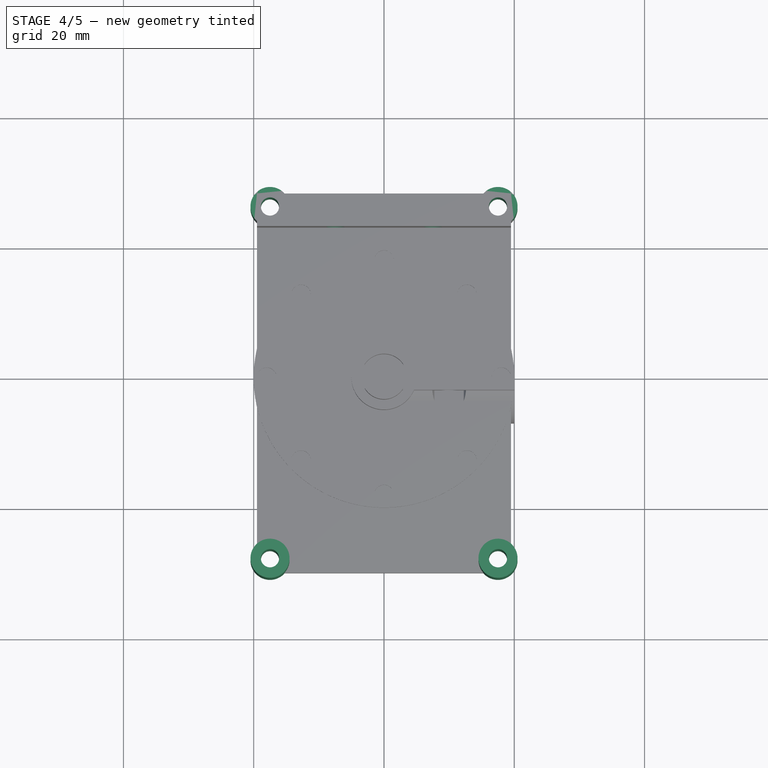
[diagram: stage 4 of 5 — top view after this stage's code; geometry added in this stage tinted green]
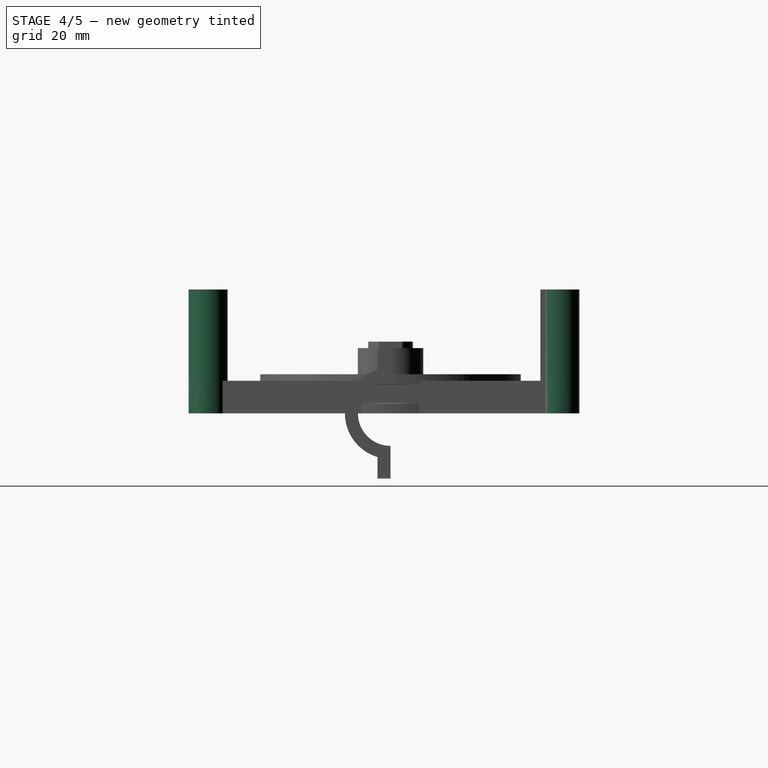
[diagram: stage 4 of 5 — right view after this stage's code; geometry added in this stage tinted green]
FEATURE [Sketcher::SketchObject] Sketch016  label="Sketch016ScrewSupport"
  FullyConstrained = true
  MapMode = 5
  Support = -> [XY_Plane001]
  expr: Constraints[10] = Spreadsheet001.screwCentertoMotorCenterTop
  expr: Constraints[18] = Spreadsheet001.m3ScrewHoleOuterR
  expr: Constraints[7] = Spreadsheet001.screwBetween
  expr: Constraints[9] = Spreadsheet001.screwCenterToMotorCenter
  sketch-geometry (8):
    g0: LineSegment StartX=-17.5 StartY=26 StartZ=0 EndX=17.5 EndY=26 EndZ=0
    g1: LineSegment StartX=17.5 StartY=26 StartZ=0 EndX=17.5 EndY=-28 EndZ=0
    g2: LineSegment StartX=17.5 StartY=-28 StartZ=0 EndX=-17.5 EndY=-28 EndZ=0
    g3: LineSegment StartX=-17.5 StartY=-28 StartZ=0 EndX=-17.5 EndY=26 EndZ=0
    g4: Circle CenterX=-17.5 CenterY=26 CenterZ=0 NormalX=0 NormalY=0 NormalZ=1 AngleXU=0 Radius=3
    g5: Circle CenterX=17.5 CenterY=26 CenterZ=0 NormalX=0 NormalY=0 NormalZ=1 AngleXU=0 Radius=3
    g6: Circle CenterX=-17.5 CenterY=-28 CenterZ=0 NormalX=0 NormalY=0 NormalZ=1 AngleXU=0 Radius=3
    g7: Circle CenterX=17.5 CenterY=-28 CenterZ=0 NormalX=0 NormalY=0 NormalZ=1 AngleXU=0 Radius=3
  constraints (19):
    c: Coincident(g0,g1)
    c: Coincident(g1,g2)
    c: Coincident(g2,g3)
    c: Coincident(g3,g0)
    c: Horizontal(g0)
    c: Vertical(g1)
    c: Vertical(g3)
    c: DistanceX(g2,g2) = 35
    c: Symmetric(g1,g2,g-2)
    c: DistanceY(g1,g-1) = 28
    c: DistanceY(g-1,g0) = 26
    c: Coincident(g4,g0)
    c: Coincident(g5,g0)
    c: Coincident(g6,g2)
    c: Coincident(g7,g1)
    c: Equal(g5,g4)
    c: Equal(g6,g7)
    c: Equal(g7,g5)
    c: Radius(g5) = 3
FEATURE [Sketcher::SketchObject] Sketch017
  FullyConstrained = true
  MapMode = 5
  Support = -> [XY_Plane001]
  expr: Constraints[10] = Spreadsheet001.screwCentertoMotorCenterTop
  expr: Constraints[7] = Spreadsheet001.screwBetween
  expr: Constraints[9] = Spreadsheet001.screwCenterToMotorCenter
  sketch-geometry (4):
    g0: LineSegment StartX=-17.5 StartY=26 StartZ=0 EndX=17.5 EndY=26 EndZ=0
    g1: LineSegment StartX=17.5 StartY=26 StartZ=0 EndX=17.5 EndY=-28 EndZ=0
    g2: LineSegment StartX=17.5 StartY=-28 StartZ=0 EndX=-17.5 EndY=-28 EndZ=0
    g3: LineSegment StartX=-17.5 StartY=-28 StartZ=0 EndX=-17.5 EndY=26 EndZ=0
  constraints (11):
    c: Coincident(g0,g1)
    c: Coincident(g1,g2)
    c: Coincident(g2,g3)
    c: Coincident(g3,g0)
    c: Horizontal(g0)
    c: Vertical(g1)
    c: Vertical(g3)
    c: DistanceX(g2,g2) = 35
    c: Symmetric(g1,g2,g-2)
    c: DistanceY(g1,g-1) = 28
    c: DistanceY(g-1,g0) = 26
FEATURE [PartDesign::Pad] Pad008
  BaseFeature = -> Pad007
  Direction = (0,0,1)
  Length = 19
  Length2 = 10
  Profile = -> Sketch016
  ReferenceAxis = -> Sketch016 [N_Axis]
  Type = 0
  expr: Length = Spreadsheet001.engineHousingTotal
FEATURE [Sketcher::SketchObject] Sketch018  label="Sketch016ScrewSupport001Hole"
  FullyConstrained = true
  MapMode = 5
  Support = -> [XY_Plane001]
  expr: Constraints[10] = Spreadsheet001.screwCentertoMotorCenterTop
  expr: Constraints[18] = Spreadsheet.parmM3ScrewHoleTightR
  expr: Constraints[7] = Spreadsheet001.screwBetween
  expr: Constraints[9] = Spreadsheet001.screwCenterToMotorCenter
  sketch-geometry (8):
    g0: LineSegment StartX=-17.5 StartY=26 StartZ=0 EndX=17.5 EndY=26 EndZ=0
    g1: LineSegment StartX=17.5 StartY=26 StartZ=0 EndX=17.5 EndY=-28 EndZ=0
    g2: LineSegment StartX=17.5 StartY=-28 StartZ=0 EndX=-17.5 EndY=-28 EndZ=0
    g3: LineSegment StartX=-17.5 StartY=-28 StartZ=0 EndX=-17.5 EndY=26 EndZ=0
    g4: Circle CenterX=-17.5 CenterY=26 CenterZ=0 NormalX=0 NormalY=0 NormalZ=1 AngleXU=0 Radius=1.4
    g5: Circle CenterX=17.5 CenterY=26 CenterZ=0 NormalX=0 NormalY=0 NormalZ=1 AngleXU=0 Radius=1.4
    g6: Circle CenterX=-17.5 CenterY=-28 CenterZ=0 NormalX=0 NormalY=0 NormalZ=1 AngleXU=0 Radius=1.4
    g7: Circle CenterX=17.5 CenterY=-28 CenterZ=0 NormalX=0 NormalY=0 NormalZ=1 AngleXU=0 Radius=1.4
  constraints (19):
    c: Coincident(g0,g1)
    c: Coincident(g1,g2)
    c: Coincident(g2,g3)
    c: Coincident(g3,g0)
    c: Horizontal(g0)
    c: Vertical(g1)
    c: Vertical(g3)
    c: DistanceX(g2,g2) = 35
    c: Symmetric(g1,g2,g-2)
    c: DistanceY(g1,g-1) = 28
    c: DistanceY(g-1,g0) = 26
    c: Coincident(g4,g0)
    c: Coincident(g5,g0)
    c: Coincident(g6,g2)
    c: Coincident(g7,g1)
    c: Equal(g5,g4)
    c: Equal(g6,g7)
    c: Equal(g7,g5)
    c: Radius(g5) = 1.4
FEATURE [PartDesign::Pocket] Pocket005  label="Pocket005ScrewHoles"
  BaseFeature = -> Pad008
  Direction = (0,0,-1)
  Length = 5
  Length2 = 5
  Profile = -> Sketch018
  ReferenceAxis = -> Sketch018 [N_Axis]
  Reversed = true
  Type = 1
FEATURE [Sketcher::SketchObject] Sketch019  label="Sketch010FrontPlate001"
  FullyConstrained = true
  MapMode = 5
  Support = -> [XY_Plane001]
  expr: Constraints[10] = Spreadsheet001.motorRBase
  expr: Constraints[14] = Spreadsheet001.toSideWidth
  expr: Constraints[1] = Spreadsheet001.screwBetween
  expr: Constraints[21] = Spreadsheet001.toSideWidth
  expr: Constraints[23] = Spreadsheet001.whellR
  expr: Constraints[24] = Spreadsheet001.motorCenterToBottom
  expr: Constraints[25] = Spreadsheet001.toSideWidth
  expr: Constraints[35] = Spreadsheet001.toSideWidth
  expr: Constraints[41] = Spreadsheet.parmMotorCenterToScrew
  expr: Constraints[46] = Spreadsheet.parmMotorMountScrewR
  expr: Constraints[4] = Spreadsheet.parmM3ScrewHoleTightR
  expr: Constraints[8] = Spreadsheet001.screwCenterToMotorCenter
  sketch-geometry (19):
    g0: LineSegment StartX=19.5 StartY=-30 StartZ=0 EndX=19.5 EndY=28 EndZ=0
    g1: LineSegment StartX=-17.5 StartY=-28 StartZ=0 EndX=17.5 EndY=-28 EndZ=0
    g2: Circle CenterX=-17.5 CenterY=-28 CenterZ=0 NormalX=0 NormalY=0 NormalZ=1 AngleXU=0 Radius=1.4
    g3: Circle CenterX=17.5 CenterY=-28 CenterZ=0 NormalX=0 NormalY=0 NormalZ=1 AngleXU=0 Radius=1.4
    g4: LineSegment StartX=0 StartY=-28 StartZ=0 EndX=0 EndY=0 EndZ=0
    g5: Circle CenterX=0 CenterY=0 CenterZ=0 NormalX=0 NormalY=0 NormalZ=1 AngleXU=0 Radius=5
    g6: LineSegment StartX=19.5 StartY=28 StartZ=0 EndX=-19.5 EndY=28 EndZ=0
    g7: LineSegment StartX=19.5 StartY=-30 StartZ=0 EndX=-19.5 EndY=-30 EndZ=0
    g8: LineSegment StartX=-19.5 StartY=28 StartZ=0 EndX=-19.5 EndY=-30 EndZ=0
    g9: Circle CenterX=0 CenterY=0 CenterZ=0 NormalX=0 NormalY=0 NormalZ=1 AngleXU=0 Radius=20
    g10: LineSegment StartX=-17.5 StartY=-28 StartZ=0 EndX=17.5 EndY=-28 EndZ=0
    g11: LineSegment StartX=17.5 StartY=-28 StartZ=0 EndX=17.5 EndY=26 EndZ=0
    g12: LineSegment StartX=-17.5 StartY=-28 StartZ=0 EndX=-17.5 EndY=26 EndZ=0
    g13: LineSegment StartX=-17.5 StartY=26 StartZ=0 EndX=17.5 EndY=26 EndZ=0
    g14: Circle CenterX=-17.5 CenterY=26 CenterZ=0 NormalX=0 NormalY=0 NormalZ=1 AngleXU=0 Radius=1.4
    g15: Circle CenterX=17.5 CenterY=26 CenterZ=0 NormalX=0 NormalY=0 NormalZ=1 AngleXU=0 Radius=1.4
    g16: Circle CenterX=0 CenterY=0 CenterZ=0 NormalX=0 NormalY=0 NormalZ=1 AngleXU=0 Radius=8
    g17: Circle CenterX=8 CenterY=0 CenterZ=0 NormalX=0 NormalY=0 NormalZ=1 AngleXU=0 Radius=2
    g18: Circle CenterX=-8 CenterY=0 CenterZ=0 NormalX=0 NormalY=0 NormalZ=1 AngleXU=0 Radius=2
  constraints (48):
    c: Horizontal(g1)
    c: DistanceX(g1,g1) = 35
    c: Coincident(g2,g1)
    c: Coincident(g3,g1)
    c: Radius(g2) = 1.4
    c: Equal(g2,g3)
    c: Vertical(g4)
    c: Symmetric(g2,g3,g4)
    c: DistanceY(g4,g4) = 28
    c: Coincident(g5,g4)
    c: Radius(g5) = 5
    c: Coincident(g6,g0)
    c: Vertical(g0)
    c: Horizontal(g6)
    c: DistanceX(g3,g0) = 2
    c: Coincident(g5,g-1)
    c: Coincident(g7,g0)
    c: Horizontal(g7)
    c: Coincident(g8,g6)
    c: Vertical(g8)
    c: Coincident(g8,g7)
    c: DistanceX(g7,g2) = 2
    c: Coincident(g9,g5)
    c: Radius(g9) = 20
    c: DistanceY(g5,g0) = 28
    c: DistanceY(g0,g3) = 2
    c: Coincident(g10,g2)
    c: Coincident(g10,g3)
    c: Coincident(g11,g3)
    c: Vertical(g11)
    c: Coincident(g12,g2)
    c: Vertical(g12)
    c: Coincident(g13,g12)
    c: Coincident(g13,g11)
    c: Horizontal(g13)
    c: DistanceY(g11,g0) = 2
    c: Coincident(g14,g12)
    c: Coincident(g15,g11)
    c: Equal(g15,g3)
    c: Equal(g3,g14)
    c: Coincident(g16,g5)
    c: Radius(g16) = 8
    c: PointOnObject(g17,g16)
    c: PointOnObject(g18,g16)
    c: PointOnObject(g18,g-1)
    c: PointOnObject(g17,g-1)
    c: Radius(g17) = 2
    c: Equal(g17,g18)
FEATURE [PartDesign::Pad] Pad009  label="Pad006FrontPlate001"
  Direction = (0,0,1)
  Length = 3
  Length2 = 10
  Profile = -> Sketch019
  ReferenceAxis = -> Sketch019 [N_Axis]
  Type = 0
  expr: Length = Spreadsheet001.frontPlateSickness
FEATURE [Sketcher::SketchObject] Sketch021  label="Sketch016ScrewSupport001"
  FullyConstrained = true
  MapMode = 5
  Support = -> [XY_Plane001]
  expr: Constraints[10] = Spreadsheet001.screwCentertoMotorCenterTop
  expr: Constraints[18] = Spreadsheet001.m3ScrewHoleOuterR
  expr: Constraints[7] = Spreadsheet001.screwBetween
  expr: Constraints[9] = Spreadsheet001.screwCenterToMotorCenter
  sketch-geometry (8):
    g0: LineSegment StartX=-17.5 StartY=26 StartZ=0 EndX=17.5 EndY=26 EndZ=0
    g1: LineSegment StartX=17.5 StartY=26 StartZ=0 EndX=17.5 EndY=-28 EndZ=0
    g2: LineSegment StartX=17.5 StartY=-28 StartZ=0 EndX=-17.5 EndY=-28 EndZ=0
    g3: LineSegment StartX=-17.5 StartY=-28 StartZ=0 EndX=-17.5 EndY=26 EndZ=0
    g4: Circle CenterX=-17.5 CenterY=26 CenterZ=0 NormalX=0 NormalY=0 NormalZ=1 AngleXU=0 Radius=3
    g5: Circle CenterX=17.5 CenterY=26 CenterZ=0 NormalX=0 NormalY=0 NormalZ=1 AngleXU=0 Radius=3
    g6: Circle CenterX=-17.5 CenterY=-28 CenterZ=0 NormalX=0 NormalY=0 NormalZ=1 AngleXU=0 Radius=3
    g7: Circle CenterX=17.5 CenterY=-28 CenterZ=0 NormalX=0 NormalY=0 NormalZ=1 AngleXU=0 Radius=3
  constraints (19):
    c: Coincident(g0,g1)
    c: Coincident(g1,g2)
    c: Coincident(g2,g3)
    c: Coincident(g3,g0)
    c: Horizontal(g0)
    c: Vertical(g1)
    c: Vertical(g3)
    c: DistanceX(g2,g2) = 35
    c: Symmetric(g1,g2,g-2)
    c: DistanceY(g1,g-1) = 28
    c: DistanceY(g-1,g0) = 26
    c: Coincident(g4,g0)
    c: Coincident(g5,g0)
    c: Coincident(g6,g2)
    c: Coincident(g7,g1)
    c: Equal(g5,g4)
    c: Equal(g6,g7)
    c: Equal(g7,g5)
    c: Radius(g5) = 3
FEATURE [PartDesign::Pad] Pad011  label="Pad011CornerSupport"
  BaseFeature = -> Pad009
  Direction = (0,0,1)
  Length = 3
  Length2 = 10
  Profile = -> Sketch021
  ReferenceAxis = -> Sketch021 [N_Axis]
  Type = 0
  expr: Length = Spreadsheet001.frontPlateSickness
FEATURE [Sketcher::SketchObject] Sketch023  label="Sketch016ScrewSupport001Hole001"
  FullyConstrained = true
  MapMode = 5
  Support = -> [XY_Plane001]
  expr: Constraints[10] = Spreadsheet001.screwCentertoMotorCenterTop
  expr: Constraints[18] = Spreadsheet.parmM3ScrewHoleTightR
  expr: Constraints[7] = Spreadsheet001.screwBetween
  expr: Constraints[9] = Spreadsheet001.screwCenterToMotorCenter
  sketch-geometry (8):
    g0: LineSegment StartX=-17.5 StartY=26 StartZ=0 EndX=17.5 EndY=26 EndZ=0
    g1: LineSegment StartX=17.5 StartY=26 StartZ=0 EndX=17.5 EndY=-28 EndZ=0
    g2: LineSegment StartX=17.5 StartY=-28 StartZ=0 EndX=-17.5 EndY=-28 EndZ=0
    g3: LineSegment StartX=-17.5 StartY=-28 StartZ=0 EndX=-17.5 EndY=26 EndZ=0
    g4: Circle CenterX=-17.5 CenterY=26 CenterZ=0 NormalX=0 NormalY=0 NormalZ=1 AngleXU=0 Radius=1.4
    g5: Circle CenterX=17.5 CenterY=26 CenterZ=0 NormalX=0 NormalY=0 NormalZ=1 AngleXU=0 Radius=1.4
    g6: Circle CenterX=-17.5 CenterY=-28 CenterZ=0 NormalX=0 NormalY=0 NormalZ=1 AngleXU=0 Radius=1.4
    g7: Circle CenterX=17.5 CenterY=-28 CenterZ=0 NormalX=0 NormalY=0 NormalZ=1 AngleXU=0 Radius=1.4
  constraints (19):
    c: Coincident(g0,g1)
    c: Coincident(g1,g2)
    c: Coincident(g2,g3)
    c: Coincident(g3,g0)
    c: Horizontal(g0)
    c: Vertical(g1)
    c: Vertical(g3)
    c: DistanceX(g2,g2) = 35
    c: Symmetric(g1,g2,g-2)
    c: DistanceY(g1,g-1) = 28
    c: DistanceY(g-1,g0) = 26
    c: Coincident(g4,g0)
    c: Coincident(g5,g0)
    c: Coincident(g6,g2)
    c: Coincident(g7,g1)
    c: Equal(g5,g4)
    c: Equal(g6,g7)
    c: Equal(g7,g5)
    c: Radius(g5) = 1.4
FEATURE [PartDesign::Pocket] Pocket006  label="Pocket005ScrewHoles001"
  BaseFeature = -> Pad011
  Direction = (0,0,-1)
  Length = 5
  Length2 = 5
  Profile = -> Sketch023
  ReferenceAxis = -> Sketch023 [N_Axis]
  Reversed = true
  Type = 1
FEATURE [PartDesign::Body] Body003  label="EngineMount001Cover"
  Group = -> [Sketch019,Pad009,Sketch021,Pad011,Sketch023,Pocket006]
  Origin = -> Origin003
  Placement = pos=(10,59,19) rot=(1,0,0;3.14159rad)
  Tip = -> Pocket006
  expr: .Placement.Base.x = Spreadsheet.parmWallScrewPlateWidth / 2
  expr: .Placement.Base.y = Spreadsheet.parmRodSupportBaseY + Spreadsheet001.motorCenterToBottom
  expr: .Placement.Base.z = Spreadsheet001.engineHousingTotal
FEATURE [Sketcher::SketchObject] Sketch024  label="Sketch024BearingHolder"
  AttachmentOffset = pos=(0,0,1) rot=(0,0,1;0rad)
  FullyConstrained = true
  MapMode = 5
  Placement = pos=(0,0,1) rot=(0,0,1;0rad)
  Support = -> [XY_Plane001]
  expr: .AttachmentOffset.Base.z = Spreadsheet001.bearingHolderRingDepth
  expr: Constraints[1] = Spreadsheet001.bearingR
  sketch-geometry (1):
    g0: Circle CenterX=0 CenterY=0 CenterZ=0 NormalX=0 NormalY=0 NormalZ=1 AngleXU=0 Radius=7.56
  constraints (2):
    c: Coincident(g0,g-1)
    c: Radius(g0) = 7.56
FEATURE [PartDesign::Pocket] Pocket007  label="Pocket007BearingHole"
  BaseFeature = -> Pocket005
  Direction = (0,0,-1)
  Length = 5
  Length2 = 5
  Profile = -> Sketch024
  ReferenceAxis = -> Sketch024 [N_Axis]
  Reversed = true
  Type = 1
FEATURE [Sketcher::SketchObject] Sketch025
  FullyConstrained = true
  MapMode = 5
  Placement = pos=(0,0,0) rot=(1,0,0;1.5708rad)
  Support = -> [XZ_Plane001]
  expr: Constraints[0] = Spreadsheet.parmConnectionScrewWidthDist
  expr: Constraints[16] = Spreadsheet.parmConnctionScrewBetweenDistY
  expr: Constraints[1] = Spreadsheet.parmConnectionScrewStartY
  expr: Constraints[5] = Spreadsheet.parmM3ScrewHoleTightR
  sketch-geometry (9):
    g0: LineSegment StartX=-7.5 StartY=9 StartZ=0 EndX=7.5 EndY=9 EndZ=0
    g1: Circle CenterX=-7.5 CenterY=9 CenterZ=0 NormalX=0 NormalY=0 NormalZ=1 AngleXU=0 Radius=1.4
    g2: Circle CenterX=7.5 CenterY=9 CenterZ=0 NormalX=0 NormalY=0 NormalZ=1 AngleXU=0 Radius=1.4
    g3: LineSegment StartX=-7.5 StartY=9 StartZ=0 EndX=7.5 EndY=9 EndZ=0
    g4: LineSegment StartX=7.5 StartY=9 StartZ=0 EndX=7.5 EndY=15 EndZ=0
    g5: LineSegment StartX=7.5 StartY=15 StartZ=0 EndX=-7.5 EndY=15 EndZ=0
    g6: LineSegment StartX=-7.5 StartY=15 StartZ=0 EndX=-7.5 EndY=9 EndZ=0
    g7: Circle CenterX=-7.5 CenterY=15 CenterZ=0 NormalX=0 NormalY=0 NormalZ=1 AngleXU=0 Radius=1.4
    g8: Circle CenterX=7.5 CenterY=15 CenterZ=0 NormalX=0 NormalY=0 NormalZ=1 AngleXU=0 Radius=1.4
  constraints (21):
    c: DistanceX(g0,g0) = 15
    c: DistanceY(g-1,g0) = 9
    c: Coincident(g1,g0)
    c: Coincident(g2,g0)
    c: Equal(g1,g2)
    c: Radius(g1) = 1.4
    c: Symmetric(g2,g1,g-2)
    c: Coincident(g3,g4)
    c: Coincident(g4,g5)
    c: Coincident(g5,g6)
    c: Coincident(g6,g3)
    c: Horizontal(g5)
    c: Vertical(g4)
    c: Vertical(g6)
    c: Coincident(g3,g1)
    c: Coincident(g3,g2)
    c: DistanceY(g4,g4) = 6
    c: Coincident(g7,g5)
    c: Coincident(g8,g4)
    c: Equal(g2,g8)
    c: Equal(g8,g7)
FEATURE [PartDesign::Pocket] Pocket009
  BaseFeature = -> Pocket007
  Direction = (0,1,2e-16)
  Length = 5
  Length2 = 5
  Profile = -> Sketch025
  ReferenceAxis = -> Sketch025 [N_Axis]
  Type = 1
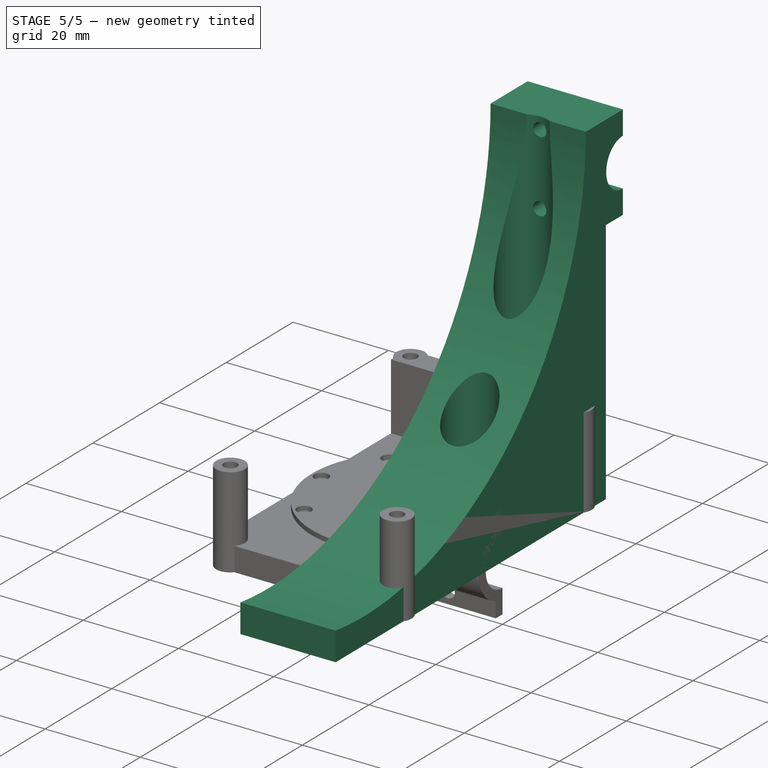
[diagram: stage 5 of 5 — iso view after this stage's code; geometry added in this stage tinted green]
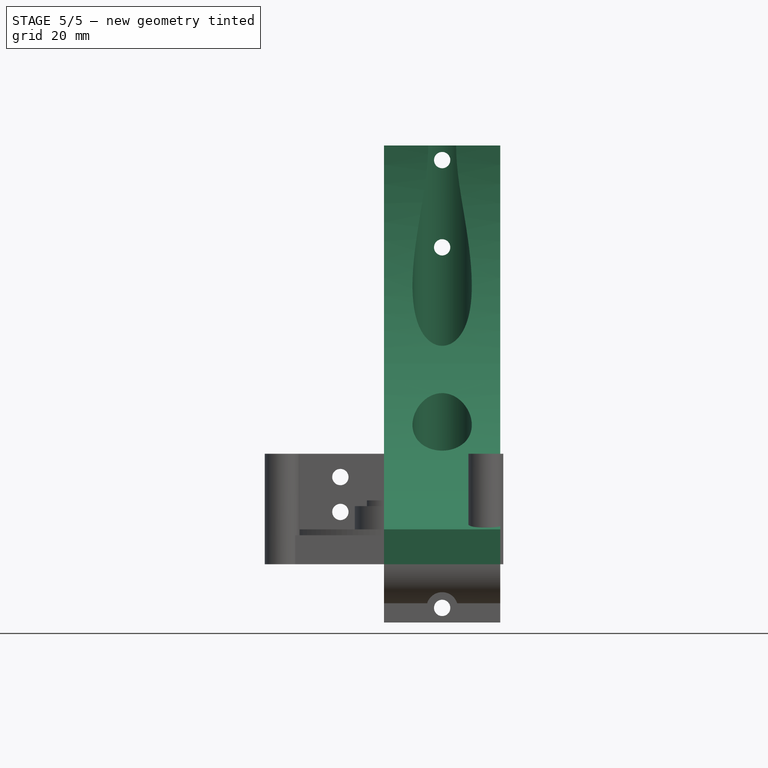
[diagram: stage 5 of 5 — front view after this stage's code; geometry added in this stage tinted green]
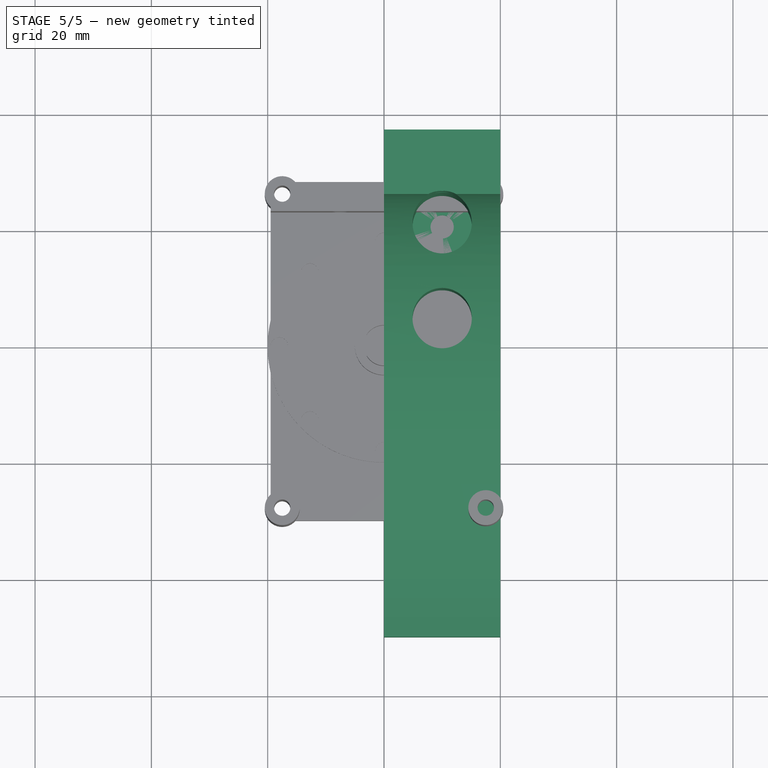
[diagram: stage 5 of 5 — top view after this stage's code; geometry added in this stage tinted green]
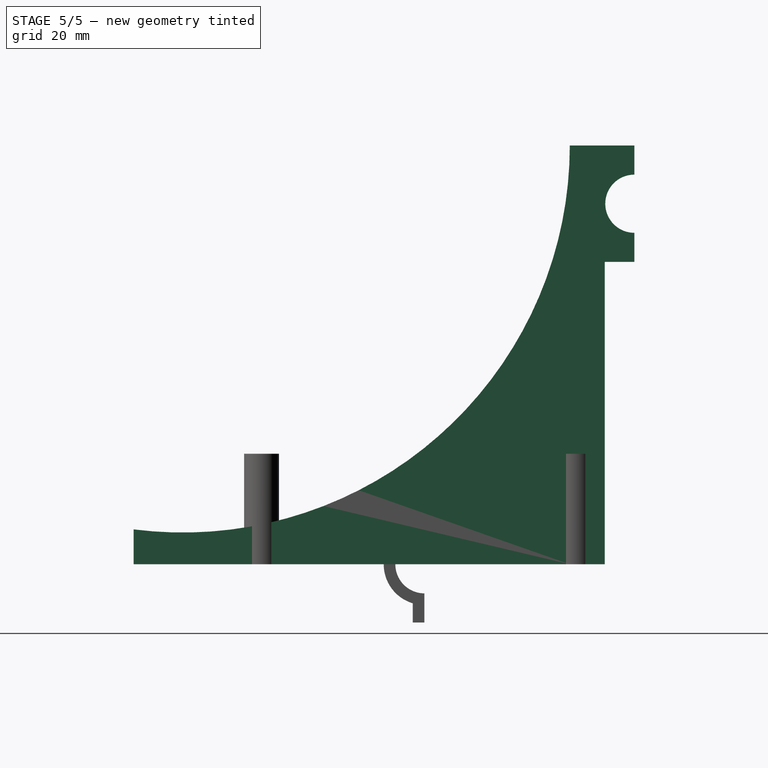
[diagram: stage 5 of 5 — right view after this stage's code; geometry added in this stage tinted green]
FEATURE [Spreadsheet::Sheet] Spreadsheet
  cells = A2='parmWallScrewBetweenDist; B2(parmWallScrewBetweenDist)=16; A3='parmWallPlatSickness; B3(parmWallPlatSickness)=6; A4='parmBlindSupportHeight; B4(parmBlindSupportHeight)=72; A5='parmRollerThickness; B5(parmRollerThickness)=5; A6='parmWallScrewPlateHeight; B6(parmWallScrewPlateHeight)=25; A7='parmWallScrewPlateWidth; B7(parmWallScrewPlateWidth)=20; D7='was 15; A8='parmScrewHoleR; B8(parmScrewHoleR)=2; A9='parmWallBlindTopSupportHeight; B9(parmWallBlindTopSupportHeight)=20; A10='parmRodR; B10(parmRodR)=5; A11='parmM3ScrewHoleTightR; B11(parmM3ScrewHoleTightR)=1.4; A12='parmM3ScrewHolePlatformMinWidth; B12(parmM3ScrewHolePlatformMinWidth)==parmM3ScrewHoleTightR * 2 + 2.2; A13='parmRodSupportWidth; B13(parmRodSupportWidth)==parmRollerThickness * 2 + parmM3ScrewHolePlatformMinWidth * 2; A15='parmScrewTopToCenterY; B15(parmScrewTopToCenterY)==parmWallScrewPlateHeight - (parmWallScrewPlateHeight - parmWallScrewBetweenDist) / 2; D15='parmWallConnectionScrewDist; E15(parmWallConnectionScrewDist)==parmScrewTopToCenterY - parmScrewBottomToCenterY; A16='parmScrewBottomToCenterY; B16(parmScrewBottomToCenterY)==(parmWallScrewPlateHeight - parmWallScrewBetweenDist) / 2; A17='parmScrewX; B17(parmScrewX)==parmWallScrewPlateWidth / 2; A18='screwHeadPathThroughR; B18(screwHeadPathThroughR)=5.1; A20='parmRodSupportBaseY; B20(parmRodSupportBaseY)==parmWallScrewPlateHeight + parmWallPlatSickness; A21='parmRodSupportTop; B21(parmRodSupportTop)==parmRodSupportBaseY + parmRodR + 0.1; A23='parmScrewToSide; B23(parmScrewToSide)==parmM3ScrewHolePlatformMinWidth / 2; A24='parmConnectionScrewWidthDist; B24(parmConnectionScrewWidthDist)==parmWallScrewPlateWidth - parmScrewToSide * 2; A25='parmConnctionScrewBetweenDistY; B25(parmConnctionScrewBetweenDistY)=6; A27='parmConnectionScrewStartY; B27(parmConnectionScrewStartY)=9; A29='parmM3CapClearence; B29(parmM3CapClearence)=2.7; A31='parmMotorCenterToScrew; B31(parmMotorCenterToScrew)=8; A32='parmMotorMountScrewR; B32(parmMotorMountScrewR)=2; A34='maxRollerR; B34(maxRollerR)=25
FEATURE [Sketcher::SketchObject] Sketch  label="SketchWallConnectionScrewHole"
  FullyConstrained = true
  MapMode = 5
  Support = -> [XY_Plane]
  expr: Constraints[0] = Spreadsheet.parmScrewBottomToCenterY
  expr: Constraints[3] = Spreadsheet.parmScrewHoleR
  expr: Constraints[4] = Spreadsheet.parmScrewHoleR
  expr: Constraints[6] = Spreadsheet.parmWallScrewPlateWidth / 2
  expr: Constraints[7] = Spreadsheet.parmWallConnectionScrewDist
  sketch-geometry (3):
    g0: LineSegment StartX=10 StartY=20.5 StartZ=0 EndX=10 EndY=4.5 EndZ=0
    g1: Circle CenterX=10 CenterY=20.5 CenterZ=0 NormalX=0 NormalY=0 NormalZ=1 AngleXU=0 Radius=2
    g2: Circle CenterX=10 CenterY=4.5 CenterZ=0 NormalX=0 NormalY=0 NormalZ=1 AngleXU=0 Radius=2
  constraints (8):
    c: DistanceY(g-1,g0) = 4.5
    c: Coincident(g1,g0)
    c: Coincident(g2,g0)
    c: Radius(g1) = 2
    c: Radius(g2) = 2
    c: Vertical(g0)
    c: DistanceX(g-1,g2) = 10
    c: DistanceY(g0,g0) = 16
FEATURE [Sketcher::SketchObject] Sketch002
  FullyConstrained = false
  MapMode = 5
  Placement = pos=(0,0,0) rot=(0.57735,0.57735,0.57735;2.0944rad)
  Support = -> [YZ_Plane]
  expr: Constraints[5] = Spreadsheet.parmWallScrewPlateHeight
  expr: Constraints[6] = Spreadsheet.parmWallPlatSickness
  expr: Constraints[7] = Spreadsheet.parmBlindSupportHeight
  expr: Constraints[9] = Spreadsheet.parmWallPlatSickness
  sketch-geometry (5):
    g0: LineSegment StartX=31 StartY=72 StartZ=0 EndX=25 EndY=72 EndZ=0
    g1: LineSegment StartX=25 StartY=72 StartZ=0 EndX=25 EndY=0 EndZ=0
    g2: LineSegment StartX=31 StartY=6 StartZ=0 EndX=45 EndY=6 EndZ=0
    g3: LineSegment StartX=31 StartY=0 StartZ=0 EndX=31 EndY=72 EndZ=0
    g4: LineSegment StartX=25 StartY=0 StartZ=0 EndX=31 EndY=0 EndZ=0
  constraints (14):
    c: Coincident(g3,g0)
    c: Coincident(g0,g1)
    c: Horizontal(g0)
    c: Vertical(g1)
    c: PointOnObject(g1,g-1)
    c: DistanceX(g-1,g1) = 25
    c: DistanceX(g0,g0) = 6
    c: DistanceY(g1,g1) = 72
    c: Horizontal(g2)
    c: DistanceY(g-1,g2) = 6
    c: Vertical(g3)
    c: PointOnObject(g4,g-1)
    c: Coincident(g4,g1)
    c: Coincident(g3,g4)
FEATURE [PartDesign::Pad] Pad002
  Direction = (1,-2e-16,3e-16)
  Length = 20
  Length2 = 10
  Placement = pos=(0,0,0) rot=(0.57735,0.57735,0.57735;2.0944rad)
  Profile = -> Sketch002
  ReferenceAxis = -> Sketch002 [N_Axis]
  Type = 0
  expr: Length = Spreadsheet.parmWallScrewPlateWidth
FEATURE [Sketcher::SketchObject] Sketch003
  FullyConstrained = true
  MapMode = 5
  Placement = pos=(0,0,0) rot=(0.57735,0.57735,0.57735;2.0944rad)
  Support = -> [YZ_Plane]
  expr: Constraints[12] = Spreadsheet.parmRodR
  expr: Constraints[13] = Spreadsheet.parmRodSupportBaseY
  expr: Constraints[15] = Spreadsheet.parmBlindSupportHeight
  expr: Constraints[16] = Spreadsheet.parmRodSupportWidth
  expr: Constraints[17] = Spreadsheet.parmRodSupportTop
  sketch-geometry (6):
    g0: LineSegment StartX=31 StartY=72 StartZ=0 EndX=36.1 EndY=72 EndZ=0
    g1: LineSegment StartX=36.1 StartY=72 StartZ=0 EndX=36.1 EndY=67 EndZ=0
    g2: LineSegment StartX=36.1 StartY=52 StartZ=0 EndX=31 EndY=52 EndZ=0
    g3: LineSegment StartX=31 StartY=52 StartZ=0 EndX=31 EndY=72 EndZ=0
    g4: ArcOfCircle CenterX=36.1 CenterY=62 CenterZ=0 NormalX=0 NormalY=0 NormalZ=1 AngleXU=0 Radius=5 StartAngle=1.5708 EndAngle=4.71239
    g5: LineSegment StartX=36.1 StartY=57 StartZ=0 EndX=36.1 EndY=52 EndZ=0
  constraints (18):
    c: Coincident(g0,g1)
    c: Coincident(g5,g2)
    c: Coincident(g2,g3)
    c: Coincident(g3,g0)
    c: Horizontal(g0)
    c: Horizontal(g2)
    c: Vertical(g1)
    c: Vertical(g3)
    c: PointOnObject(g4,g1)
    c: Coincident(g1,g4)
    c: Coincident(g5,g4)
    c: Symmetric(g0,g2,g4)
    c: Radius(g4) = 5
    c: DistanceX(g-1,g0) = 31
    c: Vertical(g5)
    c: DistanceY(g-1,g0) = 72
    c: DistanceY(g3,g3) = 20
    c: DistanceX(g-1,g0) = 36.1
FEATURE [PartDesign::Pad] Pad003
  BaseFeature = -> Pad002
  Direction = (1,-2e-16,3e-16)
  Length = 20
  Length2 = 10
  Placement = pos=(0,0,0) rot=(0.57735,0.57735,0.57735;2.0944rad)
  Profile = -> Sketch003
  ReferenceAxis = -> Sketch003 [N_Axis]
  Type = 0
  expr: Length = Spreadsheet.parmWallScrewPlateWidth
FEATURE [Sketcher::SketchObject] Sketch005
  FullyConstrained = true
  MapMode = 5
  Support = -> [XY_Plane]
  expr: Constraints[10] = Spreadsheet.parmWallScrewPlateHeight
  expr: Constraints[9] = Spreadsheet.parmWallScrewPlateWidth
  sketch-geometry (4):
    g0: LineSegment StartX=0 StartY=0 StartZ=0 EndX=20 EndY=0 EndZ=0
    g1: LineSegment StartX=20 StartY=0 StartZ=0 EndX=20 EndY=-25 EndZ=0
    g2: LineSegment StartX=20 StartY=-25 StartZ=0 EndX=0 EndY=-25 EndZ=0
    g3: LineSegment StartX=0 StartY=-25 StartZ=0 EndX=0 EndY=0 EndZ=0
  constraints (11):
    c: Coincident(g0,g1)
    c: Coincident(g1,g2)
    c: Coincident(g2,g3)
    c: Coincident(g3,g0)
    c: Horizontal(g0)
    c: Horizontal(g2)
    c: Vertical(g1)
    c: Vertical(g3)
    c: Coincident(g0,g-1)
    c: DistanceX(g0,g0) = 20
    c: DistanceY(g3,g3) = 25
FEATURE [Sketcher::SketchObject] Sketch006
  FullyConstrained = true
  MapMode = 5
  Placement = pos=(0,0,0) rot=(0.57735,0.57735,0.57735;2.0944rad)
  Support = -> [YZ_Plane]
  expr: Constraints[10] = Spreadsheet.parmWallPlatSickness
  expr: Constraints[11] = Spreadsheet.parmWallScrewPlateHeight * 2
  expr: Constraints[6] = Spreadsheet.parmWallScrewPlateHeight
  expr: Constraints[9] = Spreadsheet.parmBlindSupportHeight
  sketch-geometry (4):
    g0: LineSegment StartX=-50 StartY=0 StartZ=0 EndX=-50 EndY=6 EndZ=0
    g1: LineSegment StartX=-50 StartY=0 StartZ=0 EndX=25 EndY=0 EndZ=0
    g2: LineSegment StartX=25 StartY=0 StartZ=0 EndX=25 EndY=72 EndZ=0
    g3: ArcOfCircle CenterX=-41.54 CenterY=72 CenterZ=0 NormalX=0 NormalY=0 NormalZ=1 AngleXU=0 Radius=66.54 StartAngle=4.5849 EndAngle=6.28319
  constraints (12):
    c: PointOnObject(g0,g-1)
    c: Vertical(g0)
    c: Coincident(g1,g0)
    c: Horizontal(g1)
    c: Coincident(g2,g1)
    c: Vertical(g2)
    c: DistanceX(g-1,g1) = 25
    c: Coincident(g3,g0)
    c: Tangent(g3,g2) = -1.5708
    c: DistanceY(g2,g2) = 72
    c: DistanceY(g0,g0) = 6
    c: DistanceX(g0,g-1) = 50
FEATURE [PartDesign::Pad] Pad005
  BaseFeature = -> Pad003
  Direction = (1,-2e-16,3e-16)
  Length = 20
  Length2 = 10
  Placement = pos=(0,0,0) rot=(0.57735,0.57735,0.57735;2.0944rad)
  Profile = -> Sketch006
  ReferenceAxis = -> Sketch006 [N_Axis]
  Type = 0
  expr: Length = Spreadsheet.parmWallScrewPlateWidth
FEATURE [Sketcher::SketchObject] Sketch007
  AttachmentOffset = pos=(0,0,6) rot=(0,0,1;0rad)
  FullyConstrained = true
  MapMode = 5
  Placement = pos=(0,0,6) rot=(0,0,1;0rad)
  Support = -> [XY_Plane]
  expr: .AttachmentOffset.Base.z = Spreadsheet.parmWallPlatSickness
  expr: Constraints[1] = Spreadsheet.parmScrewTopToCenterY
  expr: Constraints[2] = Spreadsheet.parmScrewBottomToCenterY
  expr: Constraints[3] = Spreadsheet.parmScrewX
  expr: Constraints[6] = Spreadsheet.screwHeadPathThroughR
  expr: Constraints[7] = Spreadsheet.screwHeadPathThroughR
  sketch-geometry (3):
    g0: LineSegment StartX=10 StartY=20.5 StartZ=0 EndX=10 EndY=4.5 EndZ=0
    g1: Circle CenterX=10 CenterY=20.5 CenterZ=0 NormalX=0 NormalY=0 NormalZ=1 AngleXU=0 Radius=5.1
    g2: Circle CenterX=10 CenterY=4.5 CenterZ=0 NormalX=0 NormalY=0 NormalZ=1 AngleXU=0 Radius=5.1
  constraints (8):
    c: Vertical(g0)
    c: DistanceY(g-1,g0) = 20.5
    c: DistanceY(g-1,g0) = 4.5
    c: DistanceX(g-1,g0) = 10
    c: Coincident(g1,g0)
    c: Coincident(g2,g0)
    c: Radius(g1) = 5.1
    c: Radius(g2) = 5.1
FEATURE [PartDesign::Pocket] Pocket001
  BaseFeature = -> Pad005
  Direction = (0,0,-1)
  Length = 5
  Length2 = 5
  Placement = pos=(0,0,0) rot=(0.57735,0.57735,0.57735;2.0944rad)
  Profile = -> Sketch007
  ReferenceAxis = -> Sketch007 [N_Axis]
  Reversed = true
  Type = 1
FEATURE [Sketcher::SketchObject] Sketch008
  AttachmentOffset = pos=(0,0,-36.1) rot=(0,0,1;0rad)
  FullyConstrained = true
  MapMode = 5
  Placement = pos=(0,36.1,8e-15) rot=(1,0,0;1.5708rad)
  Support = -> [XZ_Plane]
  expr: .AttachmentOffset.Base.z = -Spreadsheet.parmRodSupportTop
  expr: Constraints[1] = Spreadsheet.parmBlindSupportHeight - Spreadsheet.parmM3ScrewHolePlatformMinWidth / 2
  expr: Constraints[2] = Spreadsheet.parmRodSupportWidth - Spreadsheet.parmM3ScrewHolePlatformMinWidth
  expr: Constraints[5] = Spreadsheet.parmM3ScrewHoleTightR
  expr: Constraints[7] = Spreadsheet.parmWallScrewPlateWidth / 2
  sketch-geometry (3):
    g0: LineSegment StartX=10 StartY=69.5 StartZ=0 EndX=10 EndY=54.5 EndZ=0
    g1: Circle CenterX=10 CenterY=69.5 CenterZ=0 NormalX=0 NormalY=0 NormalZ=1 AngleXU=0 Radius=1.4
    g2: Circle CenterX=10 CenterY=54.5 CenterZ=0 NormalX=0 NormalY=0 NormalZ=1 AngleXU=0 Radius=1.4
  constraints (8):
    c: Vertical(g0)
    c: DistanceY(g-1,g0) = 69.5
    c: DistanceY(g0,g0) = 15
    c: Coincident(g1,g0)
    c: Coincident(g2,g0)
    c: Radius(g1) = 1.4
    c: Equal(g1,g2)
    c: DistanceX(g-1,g2) = 10
FEATURE [PartDesign::Pocket] Pocket
  BaseFeature = -> Pocket001
  Direction = (0,1,2e-16)
  Length = 15
  Length2 = 5
  Placement = pos=(0,0,0) rot=(0.57735,0.57735,0.57735;2.0944rad)
  Profile = -> Sketch008
  ReferenceAxis = -> Sketch008 [N_Axis]
  Reversed = true
  Type = 0
FEATURE [Sketcher::SketchObject] Sketch009  label="Sketch009ConnectionScrewHoles"
  AttachmentOffset = pos=(0,0,-31) rot=(0,0,1;0rad)
  FullyConstrained = true
  MapMode = 5
  Placement = pos=(0,31,6.9e-15) rot=(1,0,0;1.5708rad)
  Support = -> [XZ_Plane]
  expr: .AttachmentOffset.Base.z = -Spreadsheet.parmRodSupportBaseY
  expr: Constraints[15] = Spreadsheet.parmM3ScrewHoleTightR
  expr: Constraints[1] = Spreadsheet.parmConnectionScrewStartY
  expr: Constraints[2] = Spreadsheet.parmScrewToSide
  expr: Constraints[3] = Spreadsheet.parmConnectionScrewWidthDist
  expr: Constraints[5] = Spreadsheet.parmConnctionScrewBetweenDistY
  sketch-geometry (6):
    g0: LineSegment StartX=2.5 StartY=9 StartZ=0 EndX=17.5 EndY=9 EndZ=0
    g1: LineSegment StartX=2.5 StartY=15 StartZ=0 EndX=17.5 EndY=15 EndZ=0
    g2: Circle CenterX=2.5 CenterY=15 CenterZ=0 NormalX=0 NormalY=0 NormalZ=1 AngleXU=0 Radius=1.4
    g3: Circle CenterX=2.5 CenterY=9 CenterZ=0 NormalX=0 NormalY=0 NormalZ=1 AngleXU=0 Radius=1.4
    g4: Circle CenterX=17.5 CenterY=15 CenterZ=0 NormalX=0 NormalY=0 NormalZ=1 AngleXU=0 Radius=1.4
    g5: Circle CenterX=17.5 CenterY=9 CenterZ=0 NormalX=0 NormalY=0 NormalZ=1 AngleXU=0 Radius=1.4
  constraints (16):
    c: Horizontal(g0)
    c: DistanceY(g-1,g0) = 9
    c: DistanceX(g-1,g0) = 2.5
    c: DistanceX(g0,g0) = 15
    c: Horizontal(g1)
    c: DistanceY(g0,g1) = 6
    c: Equal(g1,g0)
    c: DistanceX(g1,g0) = 0
    c: Coincident(g2,g1)
    c: Coincident(g3,g0)
    c: Coincident(g4,g1)
    c: Coincident(g5,g0)
    c: Equal(g2,g3)
    c: Equal(g4,g5)
    c: Equal(g4,g2)
    c: Radius(g4) = 1.4
FEATURE [PartDesign::Pocket] Pocket002  label="Pocket002ConnectionScrewHoles"
  BaseFeature = -> Pocket
  Direction = (0,1,2e-16)
  Length = 8
  Length2 = 5
  Placement = pos=(0,0,0) rot=(0.57735,0.57735,0.57735;2.0944rad)
  Profile = -> Sketch009
  ReferenceAxis = -> Sketch009 [N_Axis]
  Reversed = true
  Type = 0
FEATURE [PartDesign::Pocket] Pocket003  label="Pocket003WallScrewHoles"
  BaseFeature = -> Pocket002
  Direction = (0,0,-1)
  Length = 5
  Length2 = 5
  Placement = pos=(0,0,0) rot=(0.57735,0.57735,0.57735;2.0944rad)
  Profile = -> Sketch
  ReferenceAxis = -> Sketch [N_Axis]
  Reversed = true
  Type = 1
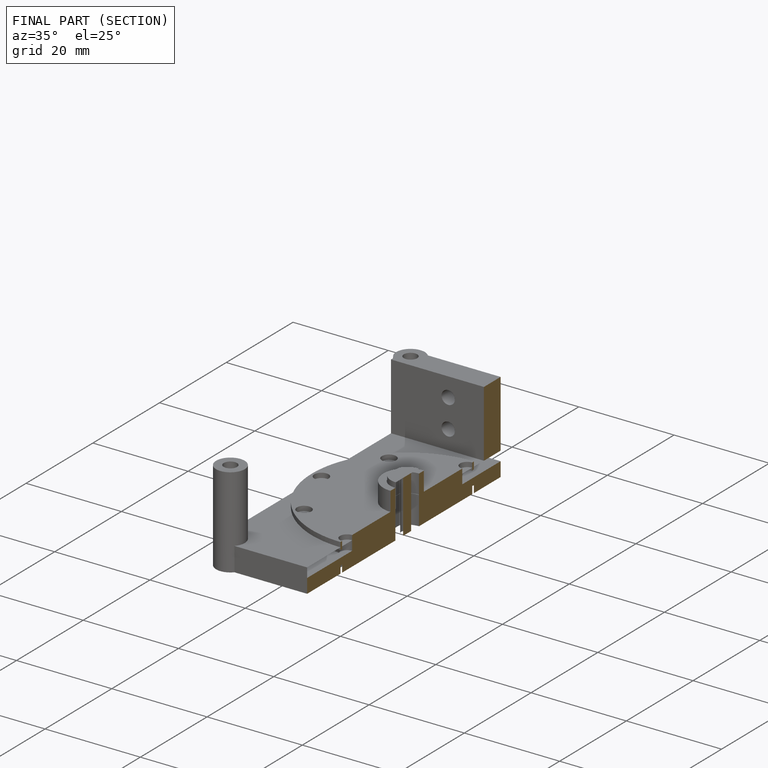
[diagram: finished part — half-section view (interior)]
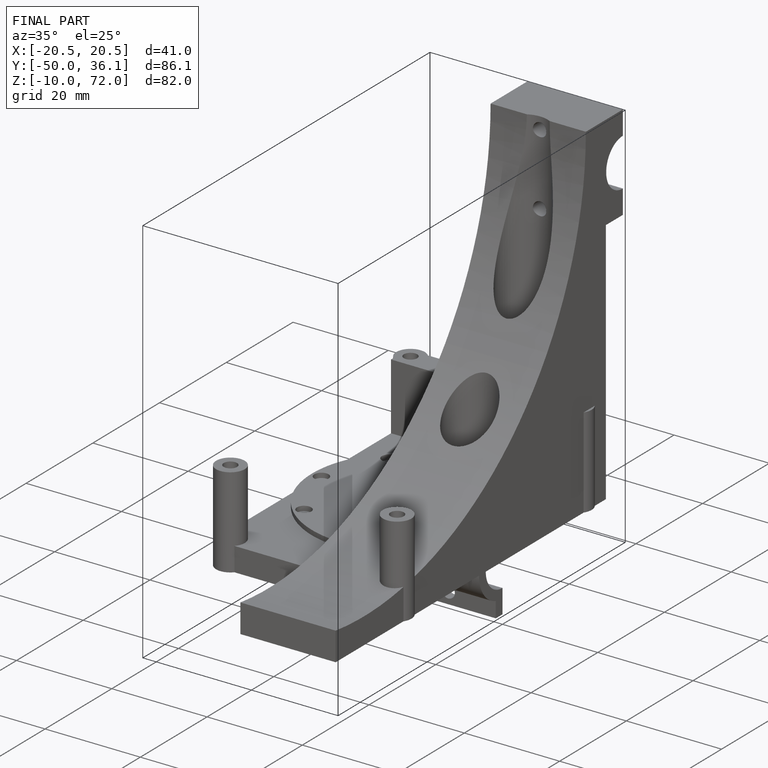
[diagram: finished part — iso view with bounding-box wireframe]
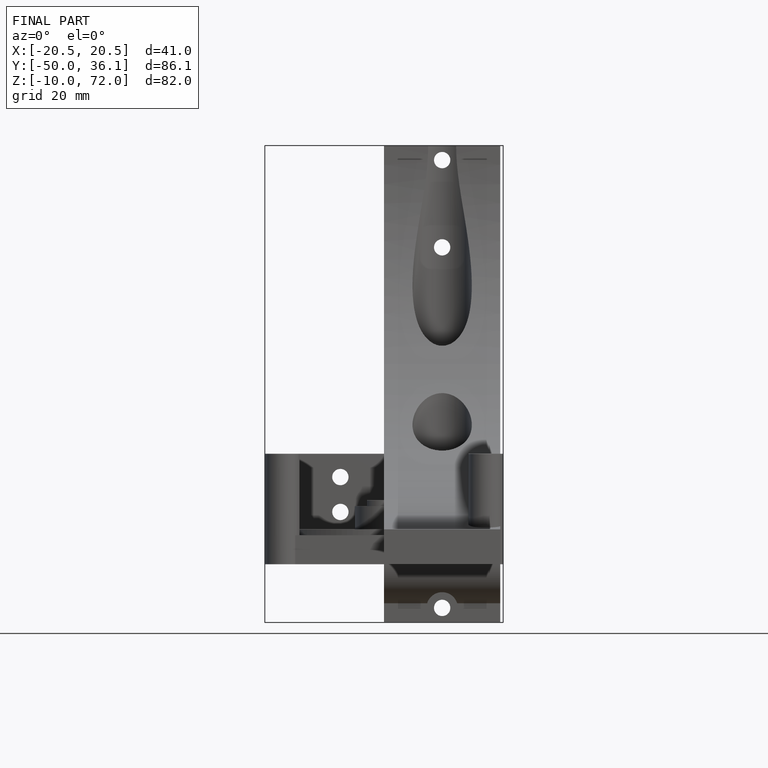
[diagram: finished part — front view with bounding-box wireframe]
